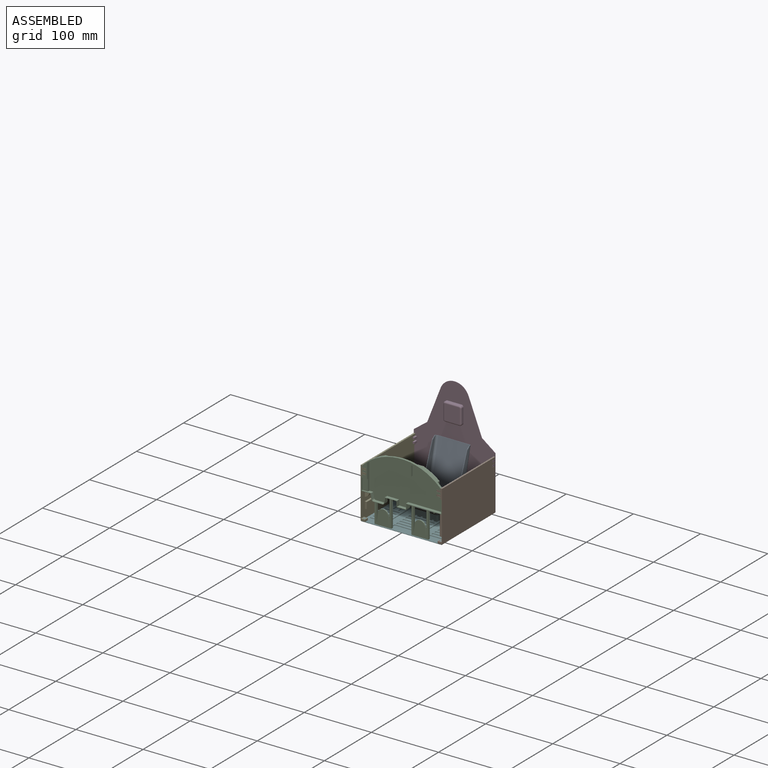
[diagram: assembled view]
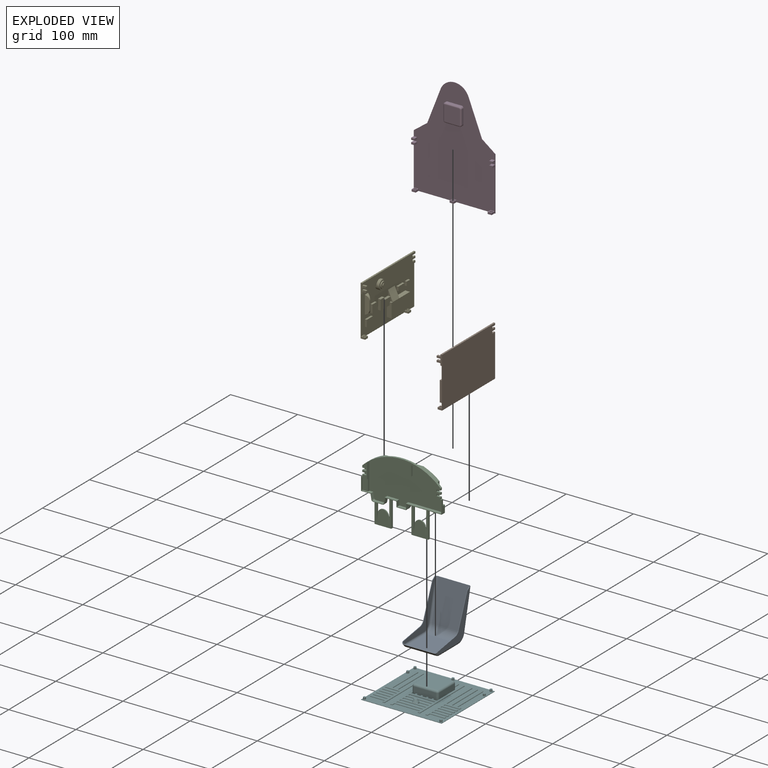
[diagram: exploded view]
GUIDED TOUR — MATED ASSEMBLY (Onshape document f643e75d56a3ad6be1e354ca, AutoMate assembly f643e75d56a3ad6be1e354ca_9b9a3edb59c0431f079ebedc_5ecf5f569c2795ce828b274c_default)

This assembly has 6 components, labeled P0..P5 below (a component is one placed occurrence of a part; the same part can appear more than once), held together by 5 mates. A mate is a constraint between two components; its type names the relative motion it leaves free:
  FASTENED — locks the two components together rigidly (no relative motion).
Axis/direction vectors are unit vectors and 'through' points are millimeter coordinates, both in the assembly's world frame.

MATES
  1. FASTENED "緊固 3": P1 <-> P5, direction (0.000, 0.000, 1.000) through (57.13, 58.55, -73.95) mm
  2. FASTENED "緊固 2": P4 <-> P5, direction (0.000, 0.000, 1.000) through (-56.87, 58.55, -73.95) mm
  3. FASTENED "緊固 5": P2 <-> P1, direction (1.000, 0.000, 0.000) through (58.33, -36.45, -9.35) mm
  4. FASTENED "緊固 1": P5 <-> P3, direction (0.000, 0.000, 1.000) through (-56.47, 73.55, -73.95) mm
  5. FASTENED "緊固 4": P0 <-> P5, direction (0.000, 0.000, -1.000) through (0.13, 48.55, -63.95) mm

ASSEMBLY ORDER
  1. P2 — the base component [order verified]
  2. P0 [order verified]
  3. P1 [order verified]
  4. P4 [order verified]
  5. P5 [order verified]
  6. P3 [order verified]
Order-tag legend:
  [order verified] — this step's position reverses a verified removal order: the component was checked to insert without passing through the ones already placed.

Of the 6 components, 4 carry the full construction recipe — the FeatureScript program that regenerates the part's solid from scratch; the rest are supplied as boundary geometry only.
Each toured component is shown spotlighted twice — in the assembled view, then in the exploded view, where a leader line traces a displaced component back to its assembled socket (saturated green if recipe-attached, orange if geometry-only; every other component desaturated gray) — followed by its recipe or geometry summary and the mates that hold it.
NOTE — document 2 of 2 of this assembly tour. The two overview renders and the header above are repeated from document 1; the component sections below continue where the previous document stopped.
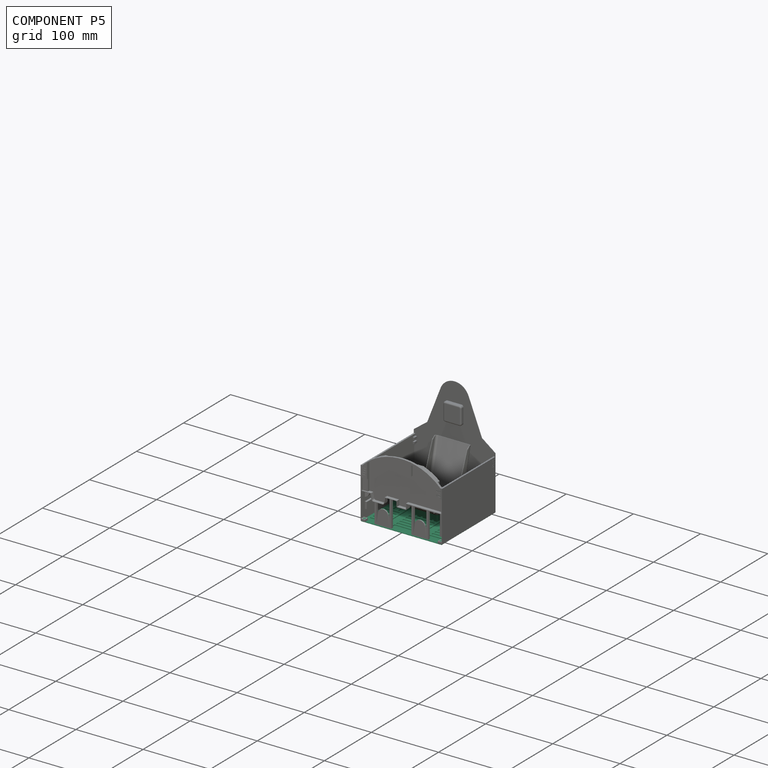
[diagram: component P5 — assembled]
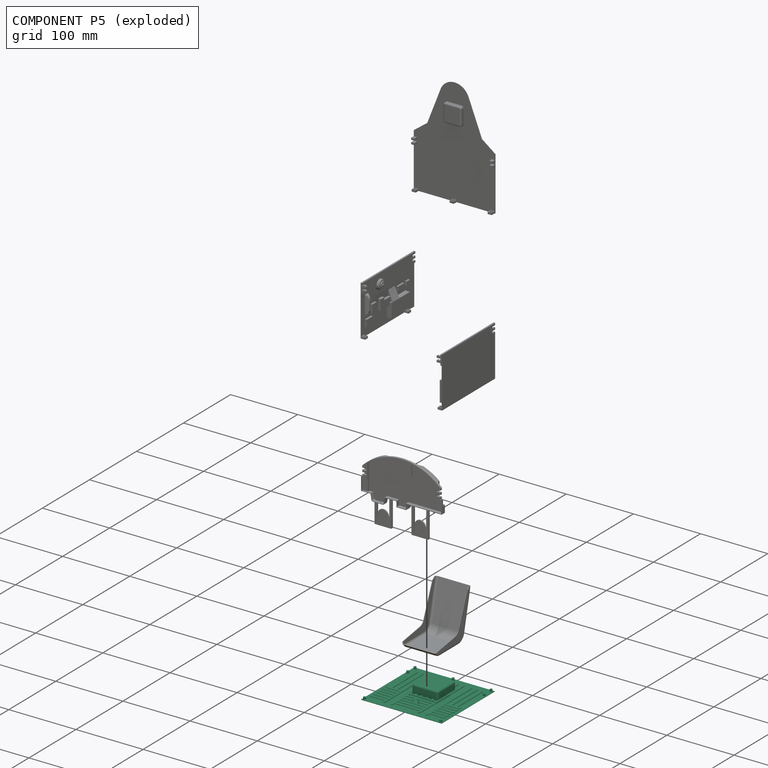
[diagram: component P5 — exploded]
COMPONENT P5 — recipe-attached (CADFS 00360889, mesh-verified: the recipe's output STEP matches this component's geometry to below the mesh-comparison resolution (tessellation chordal tolerance ~0.248 mm)).
Held by: FASTENED mate "緊固 3" to P1; FASTENED mate "緊固 2" to P4; FASTENED mate "緊固 1" to P3; FASTENED mate "緊固 4" to P0.
Construction recipe (FeatureScript — the CAD program that rebuilds this solid; sketch coordinates are in the units given by the * unit suffixes, e.g. mm):

FeatureScript 1511;
import(path : "onshape/std/geometry.fs", version : "1511.0");
import(path : "onshape/std/common.fs", version : "1511.0");
const mm = millimeter;
const VERTEX = EntityType.VERTEX;
const EDGE = EntityType.EDGE;
const FACE = EntityType.FACE;
const BODY = EntityType.BODY;
function v(x, y){return vector(x, y);}
function OD(order){return orderDisambiguation(order);}
function OSD(set){return originalSetDisambiguation(set);}
function TD(topology){return topologyDisambiguation(topology);}
function TDD(query){return trueDependencyDisambiguation(query);}
function sQuery(a, b, c) {return sketchEntityQuery(a, b, c);}

annotation { "Feature Type Name" : "Feature", "Feature Type Description" : "" }
export const myFeature = defineFeature(function(context is Context, id is Id, definition is map)
    precondition{}
    {
        {
            var Q0;
            Q0=qCreatedBy(makeId("Top.planeOp"),FACE);
            var sketch = newSketch(context, id + "F0", { "sketchPlane" : qUnion([Q0])});
            skLineSegment(sketch, "E0.bottom", {"start": v(-60, 0) * mm, "end": v(60, 0) * mm});
            skLineSegment(sketch, "E0.top", {"start": v(-60, -113) * mm, "end": v(60, -113) * mm});
            skLineSegment(sketch, "E0.left", {"start": v(-60, 0) * mm, "end": v(-60, -113) * mm});
            skLineSegment(sketch, "E0.right", {"start": v(60, 0) * mm, "end": v(60, -113) * mm});
            skPoint(sketch, "E1", {"position": v(0, 0) * mm});
            skSolve(sketch);
        }
        {
            var Q0;
            Q0 = qSketchRegion(id + "F0", true);
            extrude(context, id + "F1", {"entities" : qUnion([Q0]), "depth" : 0.6 * mm});
        }
        {
            var Q0;
            Q0=qCreatedBy(makeId("Front.planeOp"),FACE);
            cPlane(context, id + "F2", {"entities" : qUnion([Q0]), "cplaneType" : CPlaneType.OFFSET, "offset" : 10 * mm, "width" : 150 * mm, "height" : 150 * mm});
        }
        {
            var Q0;
            {var subQ37=sQuery(id+"F0.wireOp",EDGE,"E0.bottom");var subQ42=sQuery(id+"F0.wireOp",EDGE,"E0.right");var subQ43=sQuery(id+"F0.wireOp",EDGE,"E0.top");var subQ45=sQuery(id+"F0.wireOp",EDGE,"E0.left");Q0=makeQuery(id+"F12.boolean.opBoolean","SPLIT",FACE,{"disambiguationData":[TD([makeQuery(id+"F1.opExtrude","SWEPT_FACE",FACE,{"disambiguationData":[OSD([subQ37])]})])],"derivedFrom":makeQuery(id+"F1.opExtrude","CAP_FACE",FACE,{"disambiguationData":[OSD([subQ37,subQ43,subQ45,subQ42])],"isStart":false})});}
            var sketch = newSketch(context, id + "F3", { "sketchPlane" : qUnion([Q0])});
            skLineSegment(sketch, "E2.bottom", {"start": v(-19.5, -25) * mm, "end": v(19.5, -25) * mm});
            skLineSegment(sketch, "E2.top", {"start": v(-19.5, -63) * mm, "end": v(19.5, -63) * mm});
            skLineSegment(sketch, "E2.left", {"start": v(-19.5, -25) * mm, "end": v(-19.5, -63) * mm});
            skLineSegment(sketch, "E2.right", {"start": v(19.5, -25) * mm, "end": v(19.5, -63) * mm});
            skSolve(sketch);
        }
        {
            var Q0;
            Q0=qCreatedBy(id+"F2.planeOp",FACE);
            var sketch = newSketch(context, id + "F4", { "sketchPlane" : qUnion([Q0])});
            skLineSegment(sketch, "E3.bottom", {"start": v(50, 0.6) * mm, "end": v(46.8, 0.6) * mm});
            skLineSegment(sketch, "E3.top", {"start": v(50, 2) * mm, "end": v(46.8, 2) * mm});
            skLineSegment(sketch, "E3.left", {"start": v(50, 0.6) * mm, "end": v(50, 2) * mm});
            skLineSegment(sketch, "E3.right", {"start": v(46.8, 0.6) * mm, "end": v(46.8, 2) * mm});
            skLineSegment(sketch, "E4.bottom", {"start": v(41.8, 2) * mm, "end": v(38.6, 2) * mm});
            skLineSegment(sketch, "E4.top", {"start": v(41.8, 0.6) * mm, "end": v(38.6, 0.6) * mm});
            skLineSegment(sketch, "E4.left", {"start": v(41.8, 2) * mm, "end": v(41.8, 0.6) * mm});
            skLineSegment(sketch, "E4.right", {"start": v(38.6, 2) * mm, "end": v(38.6, 0.6) * mm});
            skLineSegment(sketch, "E5.bottom", {"start": v(33.6, 2) * mm, "end": v(30.4, 2) * mm});
            skLineSegment(sketch, "E5.top", {"start": v(33.6, 0.6) * mm, "end": v(30.4, 0.6) * mm});
            skLineSegment(sketch, "E5.left", {"start": v(33.6, 2) * mm, "end": v(33.6, 0.6) * mm});
            skLineSegment(sketch, "E5.right", {"start": v(30.4, 2) * mm, "end": v(30.4, 0.6) * mm});
            skLineSegment(sketch, "E6.bottom", {"start": v(-46.8, 2) * mm, "end": v(-50, 2) * mm});
            skLineSegment(sketch, "E6.top", {"start": v(-46.8, 0.6) * mm, "end": v(-50, 0.6) * mm});
            skLineSegment(sketch, "E6.left", {"start": v(-46.8, 2) * mm, "end": v(-46.8, 0.6) * mm});
            skLineSegment(sketch, "E6.right", {"start": v(-50, 2) * mm, "end": v(-50, 0.6) * mm});
            skLineSegment(sketch, "E7.bottom", {"start": v(-38.6, 2) * mm, "end": v(-41.8, 2) * mm});
            skLineSegment(sketch, "E7.top", {"start": v(-38.6, 0.6) * mm, "end": v(-41.8, 0.6) * mm});
            skLineSegment(sketch, "E7.left", {"start": v(-38.6, 2) * mm, "end": v(-38.6, 0.6) * mm});
            skLineSegment(sketch, "E7.right", {"start": v(-41.8, 2) * mm, "end": v(-41.8, 0.6) * mm});
            skLineSegment(sketch, "E8.bottom", {"start": v(-30.4, 2) * mm, "end": v(-33.6, 2) * mm});
            skLineSegment(sketch, "E8.top", {"start": v(-30.4, 0.6) * mm, "end": v(-33.6, 0.6) * mm});
            skLineSegment(sketch, "E8.left", {"start": v(-30.4, 2) * mm, "end": v(-30.4, 0.6) * mm});
            skLineSegment(sketch, "E8.right", {"start": v(-33.6, 2) * mm, "end": v(-33.6, 0.6) * mm});
            skLineSegment(sketch, "E9.bottom", {"start": v(-2.5, 2) * mm, "end": v(-5.7, 2) * mm});
            skLineSegment(sketch, "E9.top", {"start": v(-2.5, 0.6) * mm, "end": v(-5.7, 0.6) * mm});
            skLineSegment(sketch, "E9.left", {"start": v(-2.5, 2) * mm, "end": v(-2.5, 0.6) * mm});
            skLineSegment(sketch, "E9.right", {"start": v(-5.7, 2) * mm, "end": v(-5.7, 0.6) * mm});
            skLineSegment(sketch, "E10.bottom", {"start": v(-10.7, 2) * mm, "end": v(-13.9, 2) * mm});
            skLineSegment(sketch, "E10.top", {"start": v(-10.7, 0.6) * mm, "end": v(-13.9, 0.6) * mm});
            skLineSegment(sketch, "E10.left", {"start": v(-10.7, 2) * mm, "end": v(-10.7, 0.6) * mm});
            skLineSegment(sketch, "E10.right", {"start": v(-13.9, 2) * mm, "end": v(-13.9, 0.6) * mm});
            skLineSegment(sketch, "E11.bottom", {"start": v(-18.9, 2) * mm, "end": v(-22.1, 2) * mm});
            skLineSegment(sketch, "E11.top", {"start": v(-18.9, 0.6) * mm, "end": v(-22.1, 0.6) * mm});
            skLineSegment(sketch, "E11.left", {"start": v(-18.9, 2) * mm, "end": v(-18.9, 0.6) * mm});
            skLineSegment(sketch, "E11.right", {"start": v(-22.1, 2) * mm, "end": v(-22.1, 0.6) * mm});
            skLineSegment(sketch, "E12.bottom", {"start": v(5.7, 2) * mm, "end": v(2.5, 2) * mm});
            skLineSegment(sketch, "E12.top", {"start": v(5.7, 0.6) * mm, "end": v(2.5, 0.6) * mm});
            skLineSegment(sketch, "E12.left", {"start": v(5.7, 2) * mm, "end": v(5.7, 0.6) * mm});
            skLineSegment(sketch, "E12.right", {"start": v(2.5, 2) * mm, "end": v(2.5, 0.6) * mm});
            skLineSegment(sketch, "E13.bottom", {"start": v(13.9, 2) * mm, "end": v(10.7, 2) * mm});
            skLineSegment(sketch, "E13.top", {"start": v(13.9, 0.6) * mm, "end": v(10.7, 0.6) * mm});
            skLineSegment(sketch, "E13.left", {"start": v(13.9, 2) * mm, "end": v(13.9, 0.6) * mm});
            skLineSegment(sketch, "E13.right", {"start": v(10.7, 2) * mm, "end": v(10.7, 0.6) * mm});
            skLineSegment(sketch, "E14.bottom", {"start": v(22.1, 2) * mm, "end": v(18.9, 2) * mm});
            skLineSegment(sketch, "E14.top", {"start": v(22.1, 0.6) * mm, "end": v(18.9, 0.6) * mm});
            skLineSegment(sketch, "E14.left", {"start": v(22.1, 2) * mm, "end": v(22.1, 0.6) * mm});
            skLineSegment(sketch, "E14.right", {"start": v(18.9, 2) * mm, "end": v(18.9, 0.6) * mm});
            skSolve(sketch);
        }
        {
            var Q0;
            Q0 = qSketchRegion(id + "F4", true);
            extrude(context, id + "F5", {"entities" : qUnion([Q0]), "operationType" : NewBodyOperationType.ADD, "depth" : 55 * mm});
        }
        {
            var Q0;
            Q0=makeQuery(id+"F5.opExtrude","CAP_FACE",FACE,{"disambiguationData":[OSD([sQuery(id+"F4.wireOp",EDGE,"E8.bottom"),sQuery(id+"F4.wireOp",EDGE,"E8.top"),sQuery(id+"F4.wireOp",EDGE,"E8.left"),sQuery(id+"F4.wireOp",EDGE,"E8.right")])],"isStart":true});
            var Q1;
            Q1=makeQuery(id+"F5.opExtrude","CAP_FACE",FACE,{"disambiguationData":[OSD([sQuery(id+"F4.wireOp",EDGE,"E11.bottom"),sQuery(id+"F4.wireOp",EDGE,"E11.top"),sQuery(id+"F4.wireOp",EDGE,"E11.left"),sQuery(id+"F4.wireOp",EDGE,"E11.right")])],"isStart":true});
            var Q2;
            Q2=makeQuery(id+"F5.opExtrude","CAP_FACE",FACE,{"disambiguationData":[OSD([sQuery(id+"F4.wireOp",EDGE,"E14.bottom"),sQuery(id+"F4.wireOp",EDGE,"E14.top"),sQuery(id+"F4.wireOp",EDGE,"E14.left"),sQuery(id+"F4.wireOp",EDGE,"E14.right")])],"isStart":true});
            var Q3;
            Q3=makeQuery(id+"F5.opExtrude","CAP_FACE",FACE,{"disambiguationData":[OSD([sQuery(id+"F4.wireOp",EDGE,"E5.bottom"),sQuery(id+"F4.wireOp",EDGE,"E5.top"),sQuery(id+"F4.wireOp",EDGE,"E5.left"),sQuery(id+"F4.wireOp",EDGE,"E5.right")])],"isStart":true});
            extrude(context, id + "F6", {"entities" : qUnion([Q0, Q1, Q2, Q3]), "operationType" : NewBodyOperationType.ADD, "oppositeDirection" : true, "depth" : 95 * mm});
        }
        {
            var Q0;
            {var subQ0=sQuery(id+"F4.wireOp",EDGE,"E8.right");Q0=makeQuery(id+"F6.boolean.opBoolean","MERGE",FACE,{"derivedFrom":[makeQuery(id+"F5.opExtrude","SWEPT_FACE",FACE,{"disambiguationData":[OSD([subQ0])]}),makeQuery(id+"F6.opExtrude","SWEPT_FACE",FACE,{"disambiguationData":[OSD([subQ0])]})]});}
            var sketch = newSketch(context, id + "F7", { "sketchPlane" : qUnion([Q0])});
            skLineSegment(sketch, "E15.bottom", {"start": v(65, 2) * mm, "end": v(68.2, 2) * mm});
            skLineSegment(sketch, "E15.top", {"start": v(65, 0.6) * mm, "end": v(68.2, 0.6) * mm});
            skLineSegment(sketch, "E15.left", {"start": v(65, 2) * mm, "end": v(65, 0.6) * mm});
            skLineSegment(sketch, "E15.right", {"start": v(68.2, 2) * mm, "end": v(68.2, 0.6) * mm});
            skLineSegment(sketch, "E16.bottom", {"start": v(71.4, 2) * mm, "end": v(74.6, 2) * mm});
            skLineSegment(sketch, "E16.top", {"start": v(71.4, 0.6) * mm, "end": v(74.6, 0.6) * mm});
            skLineSegment(sketch, "E16.left", {"start": v(71.4, 2) * mm, "end": v(71.4, 0.6) * mm});
            skLineSegment(sketch, "E16.right", {"start": v(74.6, 2) * mm, "end": v(74.6, 0.6) * mm});
            skLineSegment(sketch, "E17.bottom", {"start": v(77.8, 2) * mm, "end": v(81, 2) * mm});
            skLineSegment(sketch, "E17.top", {"start": v(77.8, 0.6) * mm, "end": v(81, 0.6) * mm});
            skLineSegment(sketch, "E17.left", {"start": v(77.8, 2) * mm, "end": v(77.8, 0.6) * mm});
            skLineSegment(sketch, "E17.right", {"start": v(81, 2) * mm, "end": v(81, 0.6) * mm});
            skLineSegment(sketch, "E18.bottom", {"start": v(84.2, 2) * mm, "end": v(87.4, 2) * mm});
            skLineSegment(sketch, "E18.top", {"start": v(84.2, 0.6) * mm, "end": v(87.4, 0.6) * mm});
            skLineSegment(sketch, "E18.left", {"start": v(84.2, 2) * mm, "end": v(84.2, 0.6) * mm});
            skLineSegment(sketch, "E18.right", {"start": v(87.4, 2) * mm, "end": v(87.4, 0.6) * mm});
            skLineSegment(sketch, "E19.bottom", {"start": v(90.6, 2) * mm, "end": v(93.8, 2) * mm});
            skLineSegment(sketch, "E19.top", {"start": v(90.6, 0.6) * mm, "end": v(93.8, 0.6) * mm});
            skLineSegment(sketch, "E19.left", {"start": v(90.6, 2) * mm, "end": v(90.6, 0.6) * mm});
            skLineSegment(sketch, "E19.right", {"start": v(93.8, 2) * mm, "end": v(93.8, 0.6) * mm});
            skLineSegment(sketch, "E20.bottom", {"start": v(97, 2) * mm, "end": v(100.2, 2) * mm});
            skLineSegment(sketch, "E20.top", {"start": v(97, 0.6) * mm, "end": v(100.2, 0.6) * mm});
            skLineSegment(sketch, "E20.left", {"start": v(97, 2) * mm, "end": v(97, 0.6) * mm});
            skLineSegment(sketch, "E20.right", {"start": v(100.2, 2) * mm, "end": v(100.2, 0.6) * mm});
            skSolve(sketch);
        }
        {
            var Q0;
            Q0 = qSketchRegion(id + "F7", true);
            extrude(context, id + "F8", {"entities" : qUnion([Q0]), "operationType" : NewBodyOperationType.ADD, "depth" : 22 * mm});
        }
        {
            var Q0;
            {var subQ0=sQuery(id+"F4.wireOp",EDGE,"E5.left");Q0=makeQuery(id+"F6.boolean.opBoolean","MERGE",FACE,{"derivedFrom":[makeQuery(id+"F5.opExtrude","SWEPT_FACE",FACE,{"disambiguationData":[OSD([subQ0])]}),makeQuery(id+"F6.opExtrude","SWEPT_FACE",FACE,{"disambiguationData":[OSD([subQ0])]})]});}
            var sketch = newSketch(context, id + "F9", { "sketchPlane" : qUnion([Q0])});
            skLineSegment(sketch, "E21.bottom", {"start": v(-65, 0.6) * mm, "end": v(-68.2, 0.6) * mm});
            skLineSegment(sketch, "E21.top", {"start": v(-65, 2) * mm, "end": v(-68.2, 2) * mm});
            skLineSegment(sketch, "E21.left", {"start": v(-65, 0.6) * mm, "end": v(-65, 2) * mm});
            skLineSegment(sketch, "E21.right", {"start": v(-68.2, 0.6) * mm, "end": v(-68.2, 2) * mm});
            skLineSegment(sketch, "E22.bottom", {"start": v(-71.4, 0.6) * mm, "end": v(-74.6, 0.6) * mm});
            skLineSegment(sketch, "E22.top", {"start": v(-71.4, 2) * mm, "end": v(-74.6, 2) * mm});
            skLineSegment(sketch, "E22.left", {"start": v(-71.4, 0.6) * mm, "end": v(-71.4, 2) * mm});
            skLineSegment(sketch, "E22.right", {"start": v(-74.6, 0.6) * mm, "end": v(-74.6, 2) * mm});
            skLineSegment(sketch, "E23.bottom", {"start": v(-77.8, 0.6) * mm, "end": v(-81, 0.6) * mm});
            skLineSegment(sketch, "E23.top", {"start": v(-77.8, 2) * mm, "end": v(-81, 2) * mm});
            skLineSegment(sketch, "E23.left", {"start": v(-77.8, 0.6) * mm, "end": v(-77.8, 2) * mm});
            skLineSegment(sketch, "E23.right", {"start": v(-81, 0.6) * mm, "end": v(-81, 2) * mm});
            skLineSegment(sketch, "E24.bottom", {"start": v(-84.2, 0.6) * mm, "end": v(-87.4, 0.6) * mm});
            skLineSegment(sketch, "E24.top", {"start": v(-84.2, 2) * mm, "end": v(-87.4, 2) * mm});
            skLineSegment(sketch, "E24.left", {"start": v(-84.2, 0.6) * mm, "end": v(-84.2, 2) * mm});
            skLineSegment(sketch, "E24.right", {"start": v(-87.4, 0.6) * mm, "end": v(-87.4, 2) * mm});
            skLineSegment(sketch, "E25.bottom", {"start": v(-90.6, 0.6) * mm, "end": v(-93.8, 0.6) * mm});
            skLineSegment(sketch, "E25.top", {"start": v(-90.6, 2) * mm, "end": v(-93.8, 2) * mm});
            skLineSegment(sketch, "E25.left", {"start": v(-90.6, 0.6) * mm, "end": v(-90.6, 2) * mm});
            skLineSegment(sketch, "E25.right", {"start": v(-93.8, 0.6) * mm, "end": v(-93.8, 2) * mm});
            skLineSegment(sketch, "E26.bottom", {"start": v(-97, 0.6) * mm, "end": v(-100.2, 0.6) * mm});
            skLineSegment(sketch, "E26.top", {"start": v(-97, 2) * mm, "end": v(-100.2, 2) * mm});
            skLineSegment(sketch, "E26.left", {"start": v(-97, 0.6) * mm, "end": v(-97, 2) * mm});
            skLineSegment(sketch, "E26.right", {"start": v(-100.2, 0.6) * mm, "end": v(-100.2, 2) * mm});
            skSolve(sketch);
        }
        {
            var Q0;
            Q0 = qSketchRegion(id + "F9", true);
            extrude(context, id + "F10", {"entities" : qUnion([Q0]), "operationType" : NewBodyOperationType.ADD, "depth" : 22 * mm});
        }
        {
            var Q0;
            {var subQ0=sQuery(id+"F4.wireOp",EDGE,"E11.left");Q0=makeQuery(id+"F6.boolean.opBoolean","MERGE",FACE,{"derivedFrom":[makeQuery(id+"F5.opExtrude","SWEPT_FACE",FACE,{"disambiguationData":[OSD([subQ0])]}),makeQuery(id+"F6.opExtrude","SWEPT_FACE",FACE,{"disambiguationData":[OSD([subQ0])]})]});}
            var sketch = newSketch(context, id + "F11", { "sketchPlane" : qUnion([Q0])});
            skLineSegment(sketch, "E27.bottom", {"start": v(-68.2, 2) * mm, "end": v(-65, 2) * mm});
            skLineSegment(sketch, "E27.top", {"start": v(-68.2, 0.6) * mm, "end": v(-65, 0.6) * mm});
            skLineSegment(sketch, "E27.left", {"start": v(-68.2, 2) * mm, "end": v(-68.2, 0.6) * mm});
            skLineSegment(sketch, "E27.right", {"start": v(-65, 2) * mm, "end": v(-65, 0.6) * mm});
            skLineSegment(sketch, "E28.bottom", {"start": v(-74.6, 2) * mm, "end": v(-71.4, 2) * mm});
            skLineSegment(sketch, "E28.top", {"start": v(-74.6, 0.6) * mm, "end": v(-71.4, 0.6) * mm});
            skLineSegment(sketch, "E28.left", {"start": v(-74.6, 2) * mm, "end": v(-74.6, 0.6) * mm});
            skLineSegment(sketch, "E28.right", {"start": v(-71.4, 2) * mm, "end": v(-71.4, 0.6) * mm});
            skLineSegment(sketch, "E29.bottom", {"start": v(-81, 2) * mm, "end": v(-77.8, 2) * mm});
            skLineSegment(sketch, "E29.top", {"start": v(-81, 0.6) * mm, "end": v(-77.8, 0.6) * mm});
            skLineSegment(sketch, "E29.left", {"start": v(-81, 2) * mm, "end": v(-81, 0.6) * mm});
            skLineSegment(sketch, "E29.right", {"start": v(-77.8, 2) * mm, "end": v(-77.8, 0.6) * mm});
            skLineSegment(sketch, "E30.bottom", {"start": v(-87.4, 2) * mm, "end": v(-84.2, 2) * mm});
            skLineSegment(sketch, "E30.top", {"start": v(-87.4, 0.6) * mm, "end": v(-84.2, 0.6) * mm});
            skLineSegment(sketch, "E30.left", {"start": v(-87.4, 2) * mm, "end": v(-87.4, 0.6) * mm});
            skLineSegment(sketch, "E30.right", {"start": v(-84.2, 2) * mm, "end": v(-84.2, 0.6) * mm});
            skLineSegment(sketch, "E31.bottom", {"start": v(-93.8, 2) * mm, "end": v(-90.6, 2) * mm});
            skLineSegment(sketch, "E31.top", {"start": v(-93.8, 0.6) * mm, "end": v(-90.6, 0.6) * mm});
            skLineSegment(sketch, "E31.left", {"start": v(-93.8, 2) * mm, "end": v(-93.8, 0.6) * mm});
            skLineSegment(sketch, "E31.right", {"start": v(-90.6, 2) * mm, "end": v(-90.6, 0.6) * mm});
            skLineSegment(sketch, "E32.bottom", {"start": v(-100.2, 2) * mm, "end": v(-97, 2) * mm});
            skLineSegment(sketch, "E32.top", {"start": v(-100.2, 0.6) * mm, "end": v(-97, 0.6) * mm});
            skLineSegment(sketch, "E32.left", {"start": v(-100.2, 2) * mm, "end": v(-100.2, 0.6) * mm});
            skLineSegment(sketch, "E32.right", {"start": v(-97, 2) * mm, "end": v(-97, 0.6) * mm});
            skSolve(sketch);
        }
        {
            var Q0;
            Q0 = qSketchRegion(id + "F11", true);
            extrude(context, id + "F12", {"entities" : qUnion([Q0]), "operationType" : NewBodyOperationType.ADD, "depth" : 38 * mm});
        }
        {
            var Q0;
            {var subQ0=sQuery(id+"F4.wireOp",EDGE,"E5.bottom");Q0=makeQuery(id+"F10.boolean.opBoolean","MERGE",FACE,{"derivedFrom":[makeQuery(id+"F5.opExtrude","SWEPT_FACE",FACE,{"disambiguationData":[OSD([sQuery(id+"F4.wireOp",EDGE,"E3.top")])]}),makeQuery(id+"F5.opExtrude","SWEPT_FACE",FACE,{"disambiguationData":[OSD([sQuery(id+"F4.wireOp",EDGE,"E4.bottom")])]}),makeQuery(id+"F6.boolean.opBoolean","MERGE",FACE,{"derivedFrom":[makeQuery(id+"F5.opExtrude","SWEPT_FACE",FACE,{"disambiguationData":[OSD([subQ0])]}),makeQuery(id+"F6.opExtrude","SWEPT_FACE",FACE,{"disambiguationData":[OSD([subQ0])]})]}),makeQuery(id+"F10.opExtrude","SWEPT_FACE",FACE,{"disambiguationData":[OSD([sQuery(id+"F9.wireOp",EDGE,"E21.top")])]}),makeQuery(id+"F10.opExtrude","SWEPT_FACE",FACE,{"disambiguationData":[OSD([sQuery(id+"F9.wireOp",EDGE,"E22.top")])]}),makeQuery(id+"F10.opExtrude","SWEPT_FACE",FACE,{"disambiguationData":[OSD([sQuery(id+"F9.wireOp",EDGE,"E23.top")])]}),makeQuery(id+"F10.opExtrude","SWEPT_FACE",FACE,{"disambiguationData":[OSD([sQuery(id+"F9.wireOp",EDGE,"E24.top")])]}),makeQuery(id+"F10.opExtrude","SWEPT_FACE",FACE,{"disambiguationData":[OSD([sQuery(id+"F9.wireOp",EDGE,"E25.top")])]}),makeQuery(id+"F10.opExtrude","SWEPT_FACE",FACE,{"disambiguationData":[OSD([sQuery(id+"F9.wireOp",EDGE,"E26.top")])]})]});}
            var Q1;
            {var subQ0=sQuery(id+"F4.wireOp",EDGE,"E8.bottom");Q1=makeQuery(id+"F8.boolean.opBoolean","MERGE",FACE,{"derivedFrom":[makeQuery(id+"F5.opExtrude","SWEPT_FACE",FACE,{"disambiguationData":[OSD([sQuery(id+"F4.wireOp",EDGE,"E6.bottom")])]}),makeQuery(id+"F5.opExtrude","SWEPT_FACE",FACE,{"disambiguationData":[OSD([sQuery(id+"F4.wireOp",EDGE,"E7.bottom")])]}),makeQuery(id+"F6.boolean.opBoolean","MERGE",FACE,{"derivedFrom":[makeQuery(id+"F5.opExtrude","SWEPT_FACE",FACE,{"disambiguationData":[OSD([subQ0])]}),makeQuery(id+"F6.opExtrude","SWEPT_FACE",FACE,{"disambiguationData":[OSD([subQ0])]})]}),makeQuery(id+"F8.opExtrude","SWEPT_FACE",FACE,{"disambiguationData":[OSD([sQuery(id+"F7.wireOp",EDGE,"E15.bottom")])]}),makeQuery(id+"F8.opExtrude","SWEPT_FACE",FACE,{"disambiguationData":[OSD([sQuery(id+"F7.wireOp",EDGE,"E16.bottom")])]}),makeQuery(id+"F8.opExtrude","SWEPT_FACE",FACE,{"disambiguationData":[OSD([sQuery(id+"F7.wireOp",EDGE,"E17.bottom")])]}),makeQuery(id+"F8.opExtrude","SWEPT_FACE",FACE,{"disambiguationData":[OSD([sQuery(id+"F7.wireOp",EDGE,"E18.bottom")])]}),makeQuery(id+"F8.opExtrude","SWEPT_FACE",FACE,{"disambiguationData":[OSD([sQuery(id+"F7.wireOp",EDGE,"E19.bottom")])]}),makeQuery(id+"F8.opExtrude","SWEPT_FACE",FACE,{"disambiguationData":[OSD([sQuery(id+"F7.wireOp",EDGE,"E20.bottom")])]})]});}
            fillet(context, id + "F13", {"entities" : qUnion([Q0, Q1]), "radius" : 1 * mm, "tangentPropagation" : true, "allowEdgeOverflow" : false});
        }
        {
            var Q0;
            {var subQ11=sQuery(id+"F4.wireOp",EDGE,"E14.bottom");var subQ12=sQuery(id+"F4.wireOp",EDGE,"E11.left");var subQ15=sQuery(id+"F4.wireOp",EDGE,"E11.bottom");Q0=makeQuery(id+"Fkwt5QVxKcjviMI_1.boolean.opBoolean","SPLIT",FACE,{"disambiguationData":[TD([makeQuery(id+"F5.opExtrude","SWEPT_FACE",FACE,{"disambiguationData":[OSD([subQ12])]})])],"derivedFrom":makeQuery(id+"F12.boolean.opBoolean","MERGE",FACE,{"derivedFrom":[makeQuery(id+"F5.opExtrude","SWEPT_FACE",FACE,{"disambiguationData":[OSD([sQuery(id+"F4.wireOp",EDGE,"E9.bottom")])]}),makeQuery(id+"F5.opExtrude","SWEPT_FACE",FACE,{"disambiguationData":[OSD([sQuery(id+"F4.wireOp",EDGE,"E10.bottom")])]}),makeQuery(id+"F5.opExtrude","SWEPT_FACE",FACE,{"disambiguationData":[OSD([sQuery(id+"F4.wireOp",EDGE,"E12.bottom")])]}),makeQuery(id+"F5.opExtrude","SWEPT_FACE",FACE,{"disambiguationData":[OSD([sQuery(id+"F4.wireOp",EDGE,"E13.bottom")])]}),makeQuery(id+"F6.boolean.opBoolean","MERGE",FACE,{"derivedFrom":[makeQuery(id+"F5.opExtrude","SWEPT_FACE",FACE,{"disambiguationData":[OSD([subQ15])]}),makeQuery(id+"F6.opExtrude","SWEPT_FACE",FACE,{"disambiguationData":[OSD([subQ15])]})]}),makeQuery(id+"F6.boolean.opBoolean","MERGE",FACE,{"derivedFrom":[makeQuery(id+"F5.opExtrude","SWEPT_FACE",FACE,{"disambiguationData":[OSD([subQ11])]}),makeQuery(id+"F6.opExtrude","SWEPT_FACE",FACE,{"disambiguationData":[OSD([subQ11])]})]}),makeQuery(id+"F12.opExtrude","SWEPT_FACE",FACE,{"disambiguationData":[OSD([sQuery(id+"F11.wireOp",EDGE,"E27.bottom")])]}),makeQuery(id+"F12.opExtrude","SWEPT_FACE",FACE,{"disambiguationData":[OSD([sQuery(id+"F11.wireOp",EDGE,"E28.bottom")])]}),makeQuery(id+"F12.opExtrude","SWEPT_FACE",FACE,{"disambiguationData":[OSD([sQuery(id+"F11.wireOp",EDGE,"E29.bottom")])]}),makeQuery(id+"F12.opExtrude","SWEPT_FACE",FACE,{"disambiguationData":[OSD([sQuery(id+"F11.wireOp",EDGE,"E30.bottom")])]}),makeQuery(id+"F12.opExtrude","SWEPT_FACE",FACE,{"disambiguationData":[OSD([sQuery(id+"F11.wireOp",EDGE,"E31.bottom")])]}),makeQuery(id+"F12.opExtrude","SWEPT_FACE",FACE,{"disambiguationData":[OSD([sQuery(id+"F11.wireOp",EDGE,"E32.bottom")])]})]})});}
            var Q1;
            {var subQ0=sQuery(id+"F4.wireOp",EDGE,"E10.right");var subQ1=sQuery(id+"F4.wireOp",EDGE,"E10.left");var subQ2=sQuery(id+"F4.wireOp",EDGE,"E10.bottom");var subQ3=sQuery(id+"F4.wireOp",EDGE,"E14.bottom");var subQ4=sQuery(id+"F4.wireOp",EDGE,"E11.bottom");Q1=makeQuery(id+"Fkwt5QVxKcjviMI_1.boolean.opBoolean","SPLIT",FACE,{"disambiguationData":[TD([makeQuery(id+"F5.opExtrude","CAP_FACE",FACE,{"disambiguationData":[OSD([subQ2,sQuery(id+"F4.wireOp",EDGE,"E10.top"),subQ1,subQ0])],"isStart":true})])],"derivedFrom":makeQuery(id+"F12.boolean.opBoolean","MERGE",FACE,{"derivedFrom":[makeQuery(id+"F5.opExtrude","SWEPT_FACE",FACE,{"disambiguationData":[OSD([sQuery(id+"F4.wireOp",EDGE,"E9.bottom")])]}),makeQuery(id+"F5.opExtrude","SWEPT_FACE",FACE,{"disambiguationData":[OSD([subQ2])]}),makeQuery(id+"F5.opExtrude","SWEPT_FACE",FACE,{"disambiguationData":[OSD([sQuery(id+"F4.wireOp",EDGE,"E12.bottom")])]}),makeQuery(id+"F5.opExtrude","SWEPT_FACE",FACE,{"disambiguationData":[OSD([sQuery(id+"F4.wireOp",EDGE,"E13.bottom")])]}),makeQuery(id+"F6.boolean.opBoolean","MERGE",FACE,{"derivedFrom":[makeQuery(id+"F5.opExtrude","SWEPT_FACE",FACE,{"disambiguationData":[OSD([subQ4])]}),makeQuery(id+"F6.opExtrude","SWEPT_FACE",FACE,{"disambiguationData":[OSD([subQ4])]})]}),makeQuery(id+"F6.boolean.opBoolean","MERGE",FACE,{"derivedFrom":[makeQuery(id+"F5.opExtrude","SWEPT_FACE",FACE,{"disambiguationData":[OSD([subQ3])]}),makeQuery(id+"F6.opExtrude","SWEPT_FACE",FACE,{"disambiguationData":[OSD([subQ3])]})]}),makeQuery(id+"F12.opExtrude","SWEPT_FACE",FACE,{"disambiguationData":[OSD([sQuery(id+"F11.wireOp",EDGE,"E27.bottom")])]}),makeQuery(id+"F12.opExtrude","SWEPT_FACE",FACE,{"disambiguationData":[OSD([sQuery(id+"F11.wireOp",EDGE,"E28.bottom")])]}),makeQuery(id+"F12.opExtrude","SWEPT_FACE",FACE,{"disambiguationData":[OSD([sQuery(id+"F11.wireOp",EDGE,"E29.bottom")])]}),makeQuery(id+"F12.opExtrude","SWEPT_FACE",FACE,{"disambiguationData":[OSD([sQuery(id+"F11.wireOp",EDGE,"E30.bottom")])]}),makeQuery(id+"F12.opExtrude","SWEPT_FACE",FACE,{"disambiguationData":[OSD([sQuery(id+"F11.wireOp",EDGE,"E31.bottom")])]}),makeQuery(id+"F12.opExtrude","SWEPT_FACE",FACE,{"disambiguationData":[OSD([sQuery(id+"F11.wireOp",EDGE,"E32.bottom")])]})]})});}
            var Q2;
            {var subQ0=sQuery(id+"F4.wireOp",EDGE,"E9.right");var subQ1=sQuery(id+"F4.wireOp",EDGE,"E9.left");var subQ2=sQuery(id+"F4.wireOp",EDGE,"E9.bottom");var subQ3=sQuery(id+"F4.wireOp",EDGE,"E14.bottom");var subQ4=sQuery(id+"F4.wireOp",EDGE,"E11.bottom");Q2=makeQuery(id+"Fkwt5QVxKcjviMI_1.boolean.opBoolean","SPLIT",FACE,{"disambiguationData":[TD([makeQuery(id+"F5.opExtrude","CAP_FACE",FACE,{"disambiguationData":[OSD([subQ2,sQuery(id+"F4.wireOp",EDGE,"E9.top"),subQ1,subQ0])],"isStart":true})])],"derivedFrom":makeQuery(id+"F12.boolean.opBoolean","MERGE",FACE,{"derivedFrom":[makeQuery(id+"F5.opExtrude","SWEPT_FACE",FACE,{"disambiguationData":[OSD([subQ2])]}),makeQuery(id+"F5.opExtrude","SWEPT_FACE",FACE,{"disambiguationData":[OSD([sQuery(id+"F4.wireOp",EDGE,"E10.bottom")])]}),makeQuery(id+"F5.opExtrude","SWEPT_FACE",FACE,{"disambiguationData":[OSD([sQuery(id+"F4.wireOp",EDGE,"E12.bottom")])]}),makeQuery(id+"F5.opExtrude","SWEPT_FACE",FACE,{"disambiguationData":[OSD([sQuery(id+"F4.wireOp",EDGE,"E13.bottom")])]}),makeQuery(id+"F6.boolean.opBoolean","MERGE",FACE,{"derivedFrom":[makeQuery(id+"F5.opExtrude","SWEPT_FACE",FACE,{"disambiguationData":[OSD([subQ4])]}),makeQuery(id+"F6.opExtrude","SWEPT_FACE",FACE,{"disambiguationData":[OSD([subQ4])]})]}),makeQuery(id+"F6.boolean.opBoolean","MERGE",FACE,{"derivedFrom":[makeQuery(id+"F5.opExtrude","SWEPT_FACE",FACE,{"disambiguationData":[OSD([subQ3])]}),makeQuery(id+"F6.opExtrude","SWEPT_FACE",FACE,{"disambiguationData":[OSD([subQ3])]})]}),makeQuery(id+"F12.opExtrude","SWEPT_FACE",FACE,{"disambiguationData":[OSD([sQuery(id+"F11.wireOp",EDGE,"E27.bottom")])]}),makeQuery(id+"F12.opExtrude","SWEPT_FACE",FACE,{"disambiguationData":[OSD([sQuery(id+"F11.wireOp",EDGE,"E28.bottom")])]}),makeQuery(id+"F12.opExtrude","SWEPT_FACE",FACE,{"disambiguationData":[OSD([sQuery(id+"F11.wireOp",EDGE,"E29.bottom")])]}),makeQuery(id+"F12.opExtrude","SWEPT_FACE",FACE,{"disambiguationData":[OSD([sQuery(id+"F11.wireOp",EDGE,"E30.bottom")])]}),makeQuery(id+"F12.opExtrude","SWEPT_FACE",FACE,{"disambiguationData":[OSD([sQuery(id+"F11.wireOp",EDGE,"E31.bottom")])]}),makeQuery(id+"F12.opExtrude","SWEPT_FACE",FACE,{"disambiguationData":[OSD([sQuery(id+"F11.wireOp",EDGE,"E32.bottom")])]})]})});}
            var Q3;
            {var subQ0=sQuery(id+"F4.wireOp",EDGE,"E12.right");var subQ1=sQuery(id+"F4.wireOp",EDGE,"E12.left");var subQ2=sQuery(id+"F4.wireOp",EDGE,"E12.bottom");var subQ3=sQuery(id+"F4.wireOp",EDGE,"E14.bottom");var subQ4=sQuery(id+"F4.wireOp",EDGE,"E11.bottom");Q3=makeQuery(id+"Fkwt5QVxKcjviMI_1.boolean.opBoolean","SPLIT",FACE,{"disambiguationData":[TD([makeQuery(id+"F5.opExtrude","CAP_FACE",FACE,{"disambiguationData":[OSD([subQ2,sQuery(id+"F4.wireOp",EDGE,"E12.top"),subQ1,subQ0])],"isStart":true})])],"derivedFrom":makeQuery(id+"F12.boolean.opBoolean","MERGE",FACE,{"derivedFrom":[makeQuery(id+"F5.opExtrude","SWEPT_FACE",FACE,{"disambiguationData":[OSD([sQuery(id+"F4.wireOp",EDGE,"E9.bottom")])]}),makeQuery(id+"F5.opExtrude","SWEPT_FACE",FACE,{"disambiguationData":[OSD([sQuery(id+"F4.wireOp",EDGE,"E10.bottom")])]}),makeQuery(id+"F5.opExtrude","SWEPT_FACE",FACE,{"disambiguationData":[OSD([subQ2])]}),makeQuery(id+"F5.opExtrude","SWEPT_FACE",FACE,{"disambiguationData":[OSD([sQuery(id+"F4.wireOp",EDGE,"E13.bottom")])]}),makeQuery(id+"F6.boolean.opBoolean","MERGE",FACE,{"derivedFrom":[makeQuery(id+"F5.opExtrude","SWEPT_FACE",FACE,{"disambiguationData":[OSD([subQ4])]}),makeQuery(id+"F6.opExtrude","SWEPT_FACE",FACE,{"disambiguationData":[OSD([subQ4])]})]}),makeQuery(id+"F6.boolean.opBoolean","MERGE",FACE,{"derivedFrom":[makeQuery(id+"F5.opExtrude","SWEPT_FACE",FACE,{"disambiguationData":[OSD([subQ3])]}),makeQuery(id+"F6.opExtrude","SWEPT_FACE",FACE,{"disambiguationData":[OSD([subQ3])]})]}),makeQuery(id+"F12.opExtrude","SWEPT_FACE",FACE,{"disambiguationData":[OSD([sQuery(id+"F11.wireOp",EDGE,"E27.bottom")])]}),makeQuery(id+"F12.opExtrude","SWEPT_FACE",FACE,{"disambiguationData":[OSD([sQuery(id+"F11.wireOp",EDGE,"E28.bottom")])]}),makeQuery(id+"F12.opExtrude","SWEPT_FACE",FACE,{"disambiguationData":[OSD([sQuery(id+"F11.wireOp",EDGE,"E29.bottom")])]}),makeQuery(id+"F12.opExtrude","SWEPT_FACE",FACE,{"disambiguationData":[OSD([sQuery(id+"F11.wireOp",EDGE,"E30.bottom")])]}),makeQuery(id+"F12.opExtrude","SWEPT_FACE",FACE,{"disambiguationData":[OSD([sQuery(id+"F11.wireOp",EDGE,"E31.bottom")])]}),makeQuery(id+"F12.opExtrude","SWEPT_FACE",FACE,{"disambiguationData":[OSD([sQuery(id+"F11.wireOp",EDGE,"E32.bottom")])]})]})});}
            var Q4;
            {var subQ0=sQuery(id+"F4.wireOp",EDGE,"E13.right");var subQ1=sQuery(id+"F4.wireOp",EDGE,"E13.left");var subQ2=sQuery(id+"F4.wireOp",EDGE,"E13.bottom");var subQ3=sQuery(id+"F4.wireOp",EDGE,"E14.bottom");var subQ4=sQuery(id+"F4.wireOp",EDGE,"E11.bottom");Q4=makeQuery(id+"Fkwt5QVxKcjviMI_1.boolean.opBoolean","SPLIT",FACE,{"disambiguationData":[TD([makeQuery(id+"F5.opExtrude","CAP_FACE",FACE,{"disambiguationData":[OSD([subQ2,sQuery(id+"F4.wireOp",EDGE,"E13.top"),subQ1,subQ0])],"isStart":true})])],"derivedFrom":makeQuery(id+"F12.boolean.opBoolean","MERGE",FACE,{"derivedFrom":[makeQuery(id+"F5.opExtrude","SWEPT_FACE",FACE,{"disambiguationData":[OSD([sQuery(id+"F4.wireOp",EDGE,"E9.bottom")])]}),makeQuery(id+"F5.opExtrude","SWEPT_FACE",FACE,{"disambiguationData":[OSD([sQuery(id+"F4.wireOp",EDGE,"E10.bottom")])]}),makeQuery(id+"F5.opExtrude","SWEPT_FACE",FACE,{"disambiguationData":[OSD([sQuery(id+"F4.wireOp",EDGE,"E12.bottom")])]}),makeQuery(id+"F5.opExtrude","SWEPT_FACE",FACE,{"disambiguationData":[OSD([subQ2])]}),makeQuery(id+"F6.boolean.opBoolean","MERGE",FACE,{"derivedFrom":[makeQuery(id+"F5.opExtrude","SWEPT_FACE",FACE,{"disambiguationData":[OSD([subQ4])]}),makeQuery(id+"F6.opExtrude","SWEPT_FACE",FACE,{"disambiguationData":[OSD([subQ4])]})]}),makeQuery(id+"F6.boolean.opBoolean","MERGE",FACE,{"derivedFrom":[makeQuery(id+"F5.opExtrude","SWEPT_FACE",FACE,{"disambiguationData":[OSD([subQ3])]}),makeQuery(id+"F6.opExtrude","SWEPT_FACE",FACE,{"disambiguationData":[OSD([subQ3])]})]}),makeQuery(id+"F12.opExtrude","SWEPT_FACE",FACE,{"disambiguationData":[OSD([sQuery(id+"F11.wireOp",EDGE,"E27.bottom")])]}),makeQuery(id+"F12.opExtrude","SWEPT_FACE",FACE,{"disambiguationData":[OSD([sQuery(id+"F11.wireOp",EDGE,"E28.bottom")])]}),makeQuery(id+"F12.opExtrude","SWEPT_FACE",FACE,{"disambiguationData":[OSD([sQuery(id+"F11.wireOp",EDGE,"E29.bottom")])]}),makeQuery(id+"F12.opExtrude","SWEPT_FACE",FACE,{"disambiguationData":[OSD([sQuery(id+"F11.wireOp",EDGE,"E30.bottom")])]}),makeQuery(id+"F12.opExtrude","SWEPT_FACE",FACE,{"disambiguationData":[OSD([sQuery(id+"F11.wireOp",EDGE,"E31.bottom")])]}),makeQuery(id+"F12.opExtrude","SWEPT_FACE",FACE,{"disambiguationData":[OSD([sQuery(id+"F11.wireOp",EDGE,"E32.bottom")])]})]})});}
            fillet(context, id + "F14", {"entities" : qUnion([Q0, Q1, Q2, Q3, Q4]), "radius" : 1 * mm, "tangentPropagation" : true, "allowEdgeOverflow" : false});
        }
        {
            var Q0;
            {var subQ0=sQuery(id+"F4.wireOp",EDGE,"E14.right");var subQ1=makeQuery(id+"F5.opExtrude","SWEPT_FACE",FACE,{"disambiguationData":[OSD([subQ0])]});var subQ2=sQuery(id+"F7.wireOp",EDGE,"E20.right");var subQ3=makeQuery(id+"F8.opExtrude","SWEPT_FACE",FACE,{"disambiguationData":[OSD([subQ2])]});var subQ4=sQuery(id+"F9.wireOp",EDGE,"E22.right");var subQ5=makeQuery(id+"F10.opExtrude","SWEPT_FACE",FACE,{"disambiguationData":[OSD([subQ4])]});var subQ6=sQuery(id+"F4.wireOp",EDGE,"E14.left");var subQ7=sQuery(id+"F4.wireOp",EDGE,"E14.top");var subQ8=sQuery(id+"F4.wireOp",EDGE,"E14.bottom");var subQ9=makeQuery(id+"F5.opExtrude","CAP_FACE",FACE,{"disambiguationData":[OSD([subQ8,subQ7,subQ6,subQ0])],"isStart":true});var subQ10=sQuery(id+"F4.wireOp",EDGE,"E13.right");var subQ11=makeQuery(id+"F5.opExtrude","SWEPT_FACE",FACE,{"disambiguationData":[OSD([subQ10])]});var subQ12=sQuery(id+"F7.wireOp",EDGE,"E19.right");var subQ13=makeQuery(id+"F8.opExtrude","SWEPT_FACE",FACE,{"disambiguationData":[OSD([subQ12])]});var subQ14=sQuery(id+"F9.wireOp",EDGE,"E21.right");var subQ15=makeQuery(id+"F10.opExtrude","SWEPT_FACE",FACE,{"disambiguationData":[OSD([subQ14])]});var subQ16=sQuery(id+"F4.wireOp",EDGE,"E12.right");var subQ17=makeQuery(id+"F5.opExtrude","SWEPT_FACE",FACE,{"disambiguationData":[OSD([subQ16])]});var subQ18=sQuery(id+"F7.wireOp",EDGE,"E18.right");var subQ19=makeQuery(id+"F8.opExtrude","SWEPT_FACE",FACE,{"disambiguationData":[OSD([subQ18])]});var subQ20=sQuery(id+"F4.wireOp",EDGE,"E8.right");var subQ21=makeQuery(id+"F6.opExtrude","SWEPT_FACE",FACE,{"disambiguationData":[OSD([subQ20])]});var subQ22=sQuery(id+"F4.wireOp",EDGE,"E5.right");var subQ23=makeQuery(id+"F5.opExtrude","SWEPT_FACE",FACE,{"disambiguationData":[OSD([subQ22])]});var subQ24=sQuery(id+"F4.wireOp",EDGE,"E12.left");var subQ25=makeQuery(id+"F5.opExtrude","CAP_FACE",FACE,{"disambiguationData":[OSD([sQuery(id+"F4.wireOp",EDGE,"E12.bottom"),sQuery(id+"F4.wireOp",EDGE,"E12.top"),subQ24,subQ16])],"isStart":true});var subQ26=sQuery(id+"F4.wireOp",EDGE,"E11.right");var subQ27=makeQuery(id+"F5.opExtrude","SWEPT_FACE",FACE,{"disambiguationData":[OSD([subQ26])]});var subQ28=sQuery(id+"F7.wireOp",EDGE,"E17.right");var subQ29=makeQuery(id+"F8.opExtrude","SWEPT_FACE",FACE,{"disambiguationData":[OSD([subQ28])]});var subQ30=sQuery(id+"F4.wireOp",EDGE,"E11.left");var subQ31=sQuery(id+"F4.wireOp",EDGE,"E11.top");var subQ32=sQuery(id+"F4.wireOp",EDGE,"E11.bottom");var subQ33=makeQuery(id+"F5.opExtrude","CAP_FACE",FACE,{"disambiguationData":[OSD([subQ32,subQ31,subQ30,subQ26])],"isStart":true});var subQ34=sQuery(id+"F4.wireOp",EDGE,"E10.right");var subQ35=makeQuery(id+"F5.opExtrude","SWEPT_FACE",FACE,{"disambiguationData":[OSD([subQ34])]});var subQ36=sQuery(id+"F0.wireOp",EDGE,"E0.left");var subQ37=makeQuery(id+"F1.opExtrude","SWEPT_FACE",FACE,{"disambiguationData":[OSD([subQ36])]});var subQ38=sQuery(id+"F7.wireOp",EDGE,"E16.right");var subQ39=makeQuery(id+"F8.opExtrude","SWEPT_FACE",FACE,{"disambiguationData":[OSD([subQ38])]});var subQ40=sQuery(id+"F4.wireOp",EDGE,"E10.left");var subQ41=makeQuery(id+"F5.opExtrude","SWEPT_FACE",FACE,{"disambiguationData":[OSD([subQ40])]});var subQ42=sQuery(id+"F0.wireOp",EDGE,"E0.top");var subQ43=makeQuery(id+"F1.opExtrude","SWEPT_FACE",FACE,{"disambiguationData":[OSD([subQ42])]});var subQ44=sQuery(id+"F7.wireOp",EDGE,"E16.left");var subQ45=makeQuery(id+"F8.opExtrude","SWEPT_FACE",FACE,{"disambiguationData":[OSD([subQ44])]});var subQ46=makeQuery(id+"F5.opExtrude","CAP_FACE",FACE,{"disambiguationData":[OSD([sQuery(id+"F4.wireOp",EDGE,"E10.bottom"),sQuery(id+"F4.wireOp",EDGE,"E10.top"),subQ40,subQ34])],"isStart":true});var subQ47=sQuery(id+"F0.wireOp",EDGE,"E0.bottom");var subQ48=makeQuery(id+"F1.opExtrude","SWEPT_FACE",FACE,{"disambiguationData":[OSD([subQ47])]});var subQ49=sQuery(id+"F4.wireOp",EDGE,"E9.right");var subQ50=makeQuery(id+"F5.opExtrude","SWEPT_FACE",FACE,{"disambiguationData":[OSD([subQ49])]});var subQ51=sQuery(id+"F7.wireOp",EDGE,"E15.right");var subQ52=makeQuery(id+"F8.opExtrude","SWEPT_FACE",FACE,{"disambiguationData":[OSD([subQ51])]});var subQ53=sQuery(id+"F4.wireOp",EDGE,"E9.left");var subQ54=makeQuery(id+"F5.opExtrude","SWEPT_FACE",FACE,{"disambiguationData":[OSD([subQ53])]});var subQ55=sQuery(id+"F7.wireOp",EDGE,"E15.left");var subQ56=makeQuery(id+"F8.opExtrude","SWEPT_FACE",FACE,{"disambiguationData":[OSD([subQ55])]});var subQ57=makeQuery(id+"F5.opExtrude","CAP_FACE",FACE,{"disambiguationData":[OSD([sQuery(id+"F4.wireOp",EDGE,"E9.bottom"),sQuery(id+"F4.wireOp",EDGE,"E9.top"),subQ53,subQ49])],"isStart":true});var subQ58=sQuery(id+"F4.wireOp",EDGE,"E8.left");var subQ59=makeQuery(id+"F6.opExtrude","SWEPT_FACE",FACE,{"disambiguationData":[OSD([subQ58])]});var subQ60=sQuery(id+"F4.wireOp",EDGE,"E5.left");var subQ61=makeQuery(id+"F5.opExtrude","SWEPT_FACE",FACE,{"disambiguationData":[OSD([subQ60])]});var subQ62=sQuery(id+"F4.wireOp",EDGE,"E4.right");var subQ63=sQuery(id+"F4.wireOp",EDGE,"E4.left");var subQ64=makeQuery(id+"F5.opExtrude","CAP_FACE",FACE,{"disambiguationData":[OSD([sQuery(id+"F4.wireOp",EDGE,"E4.bottom"),sQuery(id+"F4.wireOp",EDGE,"E4.top"),subQ63,subQ62])],"isStart":true});var subQ65=makeQuery(id+"F6.opExtrude","SWEPT_FACE",FACE,{"disambiguationData":[OSD([subQ22])]});var subQ66=makeQuery(id+"F5.opExtrude","SWEPT_FACE",FACE,{"disambiguationData":[OSD([subQ30])]});var subQ67=sQuery(id+"F7.wireOp",EDGE,"E17.left");var subQ68=makeQuery(id+"F8.opExtrude","SWEPT_FACE",FACE,{"disambiguationData":[OSD([subQ67])]});var subQ69=sQuery(id+"F4.wireOp",EDGE,"E3.right");var subQ70=makeQuery(id+"F5.opExtrude","SWEPT_FACE",FACE,{"disambiguationData":[OSD([subQ69])]});var subQ71=sQuery(id+"F4.wireOp",EDGE,"E7.left");var subQ72=makeQuery(id+"F5.opExtrude","SWEPT_FACE",FACE,{"disambiguationData":[OSD([subQ71])]});var subQ73=makeQuery(id+"F6.opExtrude","SWEPT_FACE",FACE,{"disambiguationData":[OSD([subQ60])]});var subQ74=sQuery(id+"F4.wireOp",EDGE,"E5.top");var subQ75=sQuery(id+"F4.wireOp",EDGE,"E5.bottom");var subQ76=makeQuery(id+"F5.opExtrude","CAP_FACE",FACE,{"disambiguationData":[OSD([subQ75,subQ74,subQ60,subQ22])],"isStart":true});var subQ77=sQuery(id+"F4.wireOp",EDGE,"E3.left");var subQ78=makeQuery(id+"F5.opExtrude","SWEPT_FACE",FACE,{"disambiguationData":[OSD([subQ77])]});var subQ79=makeQuery(id+"F6.opExtrude","SWEPT_FACE",FACE,{"disambiguationData":[OSD([subQ30])]});var subQ80=sQuery(id+"F4.wireOp",EDGE,"E6.right");var subQ81=sQuery(id+"F4.wireOp",EDGE,"E6.left");var subQ82=makeQuery(id+"F5.opExtrude","CAP_FACE",FACE,{"disambiguationData":[OSD([sQuery(id+"F4.wireOp",EDGE,"E6.bottom"),sQuery(id+"F4.wireOp",EDGE,"E6.top"),subQ81,subQ80])],"isStart":true});var subQ83=makeQuery(id+"F5.opExtrude","SWEPT_FACE",FACE,{"disambiguationData":[OSD([subQ63])]});var subQ84=makeQuery(id+"F6.opExtrude","SWEPT_FACE",FACE,{"disambiguationData":[OSD([subQ26])]});var subQ85=makeQuery(id+"F5.opExtrude","SWEPT_FACE",FACE,{"disambiguationData":[OSD([subQ24])]});var subQ86=sQuery(id+"F7.wireOp",EDGE,"E18.left");var subQ87=makeQuery(id+"F8.opExtrude","SWEPT_FACE",FACE,{"disambiguationData":[OSD([subQ86])]});var subQ88=makeQuery(id+"F5.opExtrude","SWEPT_FACE",FACE,{"disambiguationData":[OSD([subQ62])]});var subQ89=makeQuery(id+"F5.opExtrude","SWEPT_FACE",FACE,{"disambiguationData":[OSD([subQ58])]});var subQ90=sQuery(id+"F0.wireOp",EDGE,"E0.right");var subQ91=makeQuery(id+"F1.opExtrude","SWEPT_FACE",FACE,{"disambiguationData":[OSD([subQ90])]});var subQ92=makeQuery(id+"F5.opExtrude","CAP_FACE",FACE,{"disambiguationData":[OSD([sQuery(id+"F4.wireOp",EDGE,"E3.bottom"),sQuery(id+"F4.wireOp",EDGE,"E3.top"),subQ77,subQ69])],"isStart":true});var subQ93=sQuery(id+"F4.wireOp",EDGE,"E13.left");var subQ94=makeQuery(id+"F5.opExtrude","CAP_FACE",FACE,{"disambiguationData":[OSD([sQuery(id+"F4.wireOp",EDGE,"E13.bottom"),sQuery(id+"F4.wireOp",EDGE,"E13.top"),subQ93,subQ10])],"isStart":true});var subQ95=makeQuery(id+"F5.opExtrude","SWEPT_FACE",FACE,{"disambiguationData":[OSD([subQ93])]});var subQ96=sQuery(id+"F7.wireOp",EDGE,"E19.left");var subQ97=makeQuery(id+"F8.opExtrude","SWEPT_FACE",FACE,{"disambiguationData":[OSD([subQ96])]});var subQ98=sQuery(id+"F9.wireOp",EDGE,"E21.left");var subQ99=makeQuery(id+"F10.opExtrude","SWEPT_FACE",FACE,{"disambiguationData":[OSD([subQ98])]});var subQ100=makeQuery(id+"F5.opExtrude","SWEPT_FACE",FACE,{"disambiguationData":[OSD([subQ81])]});var subQ101=makeQuery(id+"F6.opExtrude","SWEPT_FACE",FACE,{"disambiguationData":[OSD([subQ6])]});var subQ102=makeQuery(id+"F5.opExtrude","SWEPT_FACE",FACE,{"disambiguationData":[OSD([subQ6])]});var subQ103=sQuery(id+"F7.wireOp",EDGE,"E20.left");var subQ104=makeQuery(id+"F8.opExtrude","SWEPT_FACE",FACE,{"disambiguationData":[OSD([subQ103])]});var subQ105=sQuery(id+"F9.wireOp",EDGE,"E22.left");var subQ106=makeQuery(id+"F10.opExtrude","SWEPT_FACE",FACE,{"disambiguationData":[OSD([subQ105])]});var subQ107=makeQuery(id+"F5.opExtrude","SWEPT_FACE",FACE,{"disambiguationData":[OSD([subQ80])]});var subQ108=makeQuery(id+"F6.opExtrude","SWEPT_FACE",FACE,{"disambiguationData":[OSD([subQ0])]});var subQ109=sQuery(id+"F4.wireOp",EDGE,"E7.right");var subQ110=makeQuery(id+"F5.opExtrude","CAP_FACE",FACE,{"disambiguationData":[OSD([sQuery(id+"F4.wireOp",EDGE,"E7.bottom"),sQuery(id+"F4.wireOp",EDGE,"E7.top"),subQ71,subQ109])],"isStart":true});var subQ111=makeQuery(id+"F6.opExtrude","CAP_FACE",FACE,{"disambiguationData":[OSD([subQ75,subQ74,subQ60,subQ22])],"isStart":false});var subQ112=makeQuery(id+"F5.opExtrude","SWEPT_FACE",FACE,{"disambiguationData":[OSD([subQ109])]});var subQ113=makeQuery(id+"F6.opExtrude","CAP_FACE",FACE,{"disambiguationData":[OSD([subQ32,subQ31,subQ30,subQ26])],"isStart":false});var subQ114=sQuery(id+"F4.wireOp",EDGE,"E8.top");var subQ115=sQuery(id+"F4.wireOp",EDGE,"E8.bottom");var subQ116=makeQuery(id+"F5.opExtrude","CAP_FACE",FACE,{"disambiguationData":[OSD([subQ115,subQ114,subQ58,subQ20])],"isStart":true});var subQ117=makeQuery(id+"F6.opExtrude","CAP_FACE",FACE,{"disambiguationData":[OSD([subQ8,subQ7,subQ6,subQ0])],"isStart":false});var subQ118=makeQuery(id+"F5.opExtrude","SWEPT_FACE",FACE,{"disambiguationData":[OSD([subQ20])]});var subQ119=makeQuery(id+"F6.opExtrude","CAP_FACE",FACE,{"disambiguationData":[OSD([subQ115,subQ114,subQ58,subQ20])],"isStart":false});var subQ120=makeQuery(id+"F8.opExtrude","CAP_FACE",FACE,{"disambiguationData":[OSD([sQuery(id+"F7.wireOp",EDGE,"E15.bottom"),sQuery(id+"F7.wireOp",EDGE,"E15.top"),subQ55,subQ51])],"isStart":false});var subQ121=makeQuery(id+"F8.opExtrude","CAP_FACE",FACE,{"disambiguationData":[OSD([sQuery(id+"F7.wireOp",EDGE,"E16.bottom"),sQuery(id+"F7.wireOp",EDGE,"E16.top"),subQ44,subQ38])],"isStart":false});var subQ122=makeQuery(id+"F8.opExtrude","CAP_FACE",FACE,{"disambiguationData":[OSD([sQuery(id+"F7.wireOp",EDGE,"E17.bottom"),sQuery(id+"F7.wireOp",EDGE,"E17.top"),subQ67,subQ28])],"isStart":false});var subQ123=makeQuery(id+"F8.opExtrude","CAP_FACE",FACE,{"disambiguationData":[OSD([sQuery(id+"F7.wireOp",EDGE,"E18.bottom"),sQuery(id+"F7.wireOp",EDGE,"E18.top"),subQ86,subQ18])],"isStart":false});var subQ124=makeQuery(id+"F8.opExtrude","CAP_FACE",FACE,{"disambiguationData":[OSD([sQuery(id+"F7.wireOp",EDGE,"E19.bottom"),sQuery(id+"F7.wireOp",EDGE,"E19.top"),subQ96,subQ12])],"isStart":false});var subQ125=makeQuery(id+"F10.opExtrude","CAP_FACE",FACE,{"disambiguationData":[OSD([sQuery(id+"F9.wireOp",EDGE,"E21.bottom"),sQuery(id+"F9.wireOp",EDGE,"E21.top"),subQ98,subQ14])],"isStart":false});var subQ126=makeQuery(id+"F8.opExtrude","CAP_FACE",FACE,{"disambiguationData":[OSD([sQuery(id+"F7.wireOp",EDGE,"E20.bottom"),sQuery(id+"F7.wireOp",EDGE,"E20.top"),subQ103,subQ2])],"isStart":false});var subQ127=makeQuery(id+"F10.opExtrude","CAP_FACE",FACE,{"disambiguationData":[OSD([sQuery(id+"F9.wireOp",EDGE,"E22.bottom"),sQuery(id+"F9.wireOp",EDGE,"E22.top"),subQ105,subQ4])],"isStart":false});var subQ128=sQuery(id+"F9.wireOp",EDGE,"E23.right");var subQ129=sQuery(id+"F9.wireOp",EDGE,"E23.left");var subQ130=makeQuery(id+"F10.opExtrude","CAP_FACE",FACE,{"disambiguationData":[OSD([sQuery(id+"F9.wireOp",EDGE,"E23.bottom"),sQuery(id+"F9.wireOp",EDGE,"E23.top"),subQ129,subQ128])],"isStart":false});var subQ131=makeQuery(id+"F10.opExtrude","SWEPT_FACE",FACE,{"disambiguationData":[OSD([subQ129])]});var subQ132=makeQuery(id+"F10.opExtrude","SWEPT_FACE",FACE,{"disambiguationData":[OSD([subQ128])]});var subQ133=sQuery(id+"F9.wireOp",EDGE,"E24.right");var subQ134=sQuery(id+"F9.wireOp",EDGE,"E24.left");var subQ135=makeQuery(id+"F10.opExtrude","CAP_FACE",FACE,{"disambiguationData":[OSD([sQuery(id+"F9.wireOp",EDGE,"E24.bottom"),sQuery(id+"F9.wireOp",EDGE,"E24.top"),subQ134,subQ133])],"isStart":false});var subQ136=makeQuery(id+"F10.opExtrude","SWEPT_FACE",FACE,{"disambiguationData":[OSD([subQ134])]});var subQ137=makeQuery(id+"F10.opExtrude","SWEPT_FACE",FACE,{"disambiguationData":[OSD([subQ133])]});var subQ138=sQuery(id+"F9.wireOp",EDGE,"E25.right");var subQ139=sQuery(id+"F9.wireOp",EDGE,"E25.left");var subQ140=makeQuery(id+"F10.opExtrude","CAP_FACE",FACE,{"disambiguationData":[OSD([sQuery(id+"F9.wireOp",EDGE,"E25.bottom"),sQuery(id+"F9.wireOp",EDGE,"E25.top"),subQ139,subQ138])],"isStart":false});var subQ141=makeQuery(id+"F10.opExtrude","SWEPT_FACE",FACE,{"disambiguationData":[OSD([subQ139])]});var subQ142=makeQuery(id+"F10.opExtrude","SWEPT_FACE",FACE,{"disambiguationData":[OSD([subQ138])]});var subQ143=sQuery(id+"F9.wireOp",EDGE,"E26.right");var subQ144=sQuery(id+"F9.wireOp",EDGE,"E26.left");var subQ145=makeQuery(id+"F10.opExtrude","CAP_FACE",FACE,{"disambiguationData":[OSD([sQuery(id+"F9.wireOp",EDGE,"E26.bottom"),sQuery(id+"F9.wireOp",EDGE,"E26.top"),subQ144,subQ143])],"isStart":false});var subQ146=makeQuery(id+"F10.opExtrude","SWEPT_FACE",FACE,{"disambiguationData":[OSD([subQ144])]});var subQ147=makeQuery(id+"F10.opExtrude","SWEPT_FACE",FACE,{"disambiguationData":[OSD([subQ143])]});var subQ148=makeQuery(id+"F12.opExtrude","SWEPT_FACE",FACE,{"disambiguationData":[OSD([sQuery(id+"F11.wireOp",EDGE,"E32.left")])]});Q0=makeQuery(id+"Fkwt5QVxKcjviMI_1.boolean.opBoolean","SPLIT",FACE,{"disambiguationData":[TD([subQ48,subQ43,subQ37,subQ91,subQ92,subQ78,subQ70,subQ64,subQ83,subQ88,subQ76,subQ61,subQ23,subQ82,subQ100,subQ107,subQ110,subQ72,subQ112,subQ116,subQ89,subQ118,subQ57,subQ54,subQ50,subQ46,subQ41,subQ35,subQ33,subQ66,subQ27,subQ25,subQ85,subQ17,subQ94,subQ95,subQ11,subQ9,subQ102,subQ1,subQ73,subQ65,subQ59,subQ21,subQ79,subQ84,subQ101,subQ108,subQ111,subQ119,subQ113,subQ117,subQ120,subQ56,subQ52,subQ121,subQ45,subQ39,subQ122,subQ68,subQ29,subQ123,subQ87,subQ19,subQ124,subQ97,subQ13,subQ126,subQ104,subQ3,subQ125,subQ99,subQ15,subQ127,subQ106,subQ5,subQ130,subQ131,subQ132,subQ135,subQ136,subQ137,subQ140,subQ141,subQ142,subQ145,subQ146,subQ147,subQ148,makeQuery(id+"Fkwt5QVxKcjviMI_1.opLoft","SWEPT_FACE",FACE,{"disambiguationData":[OSD([sQuery(id+"F3.wireOp",EDGE,"E2.bottom"),sQuery(id+"F3.wireOp",EDGE,"E2.left"),sQuery(id+"F3.wireOp",EDGE,"E2.right"),sQuery(id+"FE5xeYKwAuwMR8U_1.wireOp",EDGE,"wRlAwEkL-zv5v-XHx1-PrvH-ztm02dXU6yU6.bottom"),sQuery(id+"FE5xeYKwAuwMR8U_1.wireOp",EDGE,"wRlAwEkL-zv5v-XHx1-PrvH-ztm02dXU6yU6.left"),sQuery(id+"FE5xeYKwAuwMR8U_1.wireOp",EDGE,"wRlAwEkL-zv5v-XHx1-PrvH-ztm02dXU6yU6.right")])]})])],"derivedFrom":makeQuery(id+"F12.boolean.opBoolean","SPLIT",FACE,{"disambiguationData":[TD([subQ48])],"derivedFrom":makeQuery(id+"F1.opExtrude","CAP_FACE",FACE,{"disambiguationData":[OSD([subQ47,subQ42,subQ36,subQ90])],"isStart":false})})});}
            var sketch = newSketch(context, id + "F15", { "sketchPlane" : qUnion([Q0])});
            skCircle(sketch, "E33", {"center": v(0, -82.6) * mm, "radius": 4.5 * mm});
            skSolve(sketch);
        }
        {
            var Q0;
            Q0 = qSketchRegion(id + "F15", true);
            extrude(context, id + "F16", {"entities" : qUnion([Q0]), "operationType" : NewBodyOperationType.ADD, "depth" : 1.4 * mm});
        }
        {
            var Q0;
            {var subQ11=sQuery(id+"F4.wireOp",EDGE,"E14.bottom");var subQ12=sQuery(id+"F4.wireOp",EDGE,"E11.left");var subQ15=sQuery(id+"F4.wireOp",EDGE,"E11.bottom");Q0=makeQuery(id+"F16.boolean.opBoolean","MERGE",FACE,{"derivedFrom":[makeQuery(id+"F14.opFillet","SPLIT",FACE,{"disambiguationData":[OD(2.0)],"derivedFrom":makeQuery(id+"Fkwt5QVxKcjviMI_1.boolean.opBoolean","SPLIT",FACE,{"disambiguationData":[TD([makeQuery(id+"F5.opExtrude","SWEPT_FACE",FACE,{"disambiguationData":[OSD([subQ12])]})])],"derivedFrom":makeQuery(id+"F12.boolean.opBoolean","MERGE",FACE,{"derivedFrom":[makeQuery(id+"F5.opExtrude","SWEPT_FACE",FACE,{"disambiguationData":[OSD([sQuery(id+"F4.wireOp",EDGE,"E9.bottom")])]}),makeQuery(id+"F5.opExtrude","SWEPT_FACE",FACE,{"disambiguationData":[OSD([sQuery(id+"F4.wireOp",EDGE,"E10.bottom")])]}),makeQuery(id+"F5.opExtrude","SWEPT_FACE",FACE,{"disambiguationData":[OSD([sQuery(id+"F4.wireOp",EDGE,"E12.bottom")])]}),makeQuery(id+"F5.opExtrude","SWEPT_FACE",FACE,{"disambiguationData":[OSD([sQuery(id+"F4.wireOp",EDGE,"E13.bottom")])]}),makeQuery(id+"F6.boolean.opBoolean","MERGE",FACE,{"derivedFrom":[makeQuery(id+"F5.opExtrude","SWEPT_FACE",FACE,{"disambiguationData":[OSD([subQ15])]}),makeQuery(id+"F6.opExtrude","SWEPT_FACE",FACE,{"disambiguationData":[OSD([subQ15])]})]}),makeQuery(id+"F6.boolean.opBoolean","MERGE",FACE,{"derivedFrom":[makeQuery(id+"F5.opExtrude","SWEPT_FACE",FACE,{"disambiguationData":[OSD([subQ11])]}),makeQuery(id+"F6.opExtrude","SWEPT_FACE",FACE,{"disambiguationData":[OSD([subQ11])]})]}),makeQuery(id+"F12.opExtrude","SWEPT_FACE",FACE,{"disambiguationData":[OSD([sQuery(id+"F11.wireOp",EDGE,"E27.bottom")])]}),makeQuery(id+"F12.opExtrude","SWEPT_FACE",FACE,{"disambiguationData":[OSD([sQuery(id+"F11.wireOp",EDGE,"E28.bottom")])]}),makeQuery(id+"F12.opExtrude","SWEPT_FACE",FACE,{"disambiguationData":[OSD([sQuery(id+"F11.wireOp",EDGE,"E29.bottom")])]}),makeQuery(id+"F12.opExtrude","SWEPT_FACE",FACE,{"disambiguationData":[OSD([sQuery(id+"F11.wireOp",EDGE,"E30.bottom")])]}),makeQuery(id+"F12.opExtrude","SWEPT_FACE",FACE,{"disambiguationData":[OSD([sQuery(id+"F11.wireOp",EDGE,"E31.bottom")])]}),makeQuery(id+"F12.opExtrude","SWEPT_FACE",FACE,{"disambiguationData":[OSD([sQuery(id+"F11.wireOp",EDGE,"E32.bottom")])]})]})})}),makeQuery(id+"F16.opExtrude","CAP_FACE",FACE,{"disambiguationData":[OSD([sQuery(id+"F15.wireOp",EDGE,"E33")])],"isStart":false})]});}
            cPlane(context, id + "F17", {"entities" : qUnion([Q0]), "cplaneType" : CPlaneType.OFFSET, "offset" : 4 * mm, "width" : 150 * mm, "height" : 150 * mm});
        }
        {
            var Q0;
            Q0=qCreatedBy(id+"F17.planeOp",FACE);
            var sketch = newSketch(context, id + "F18", { "sketchPlane" : qUnion([Q0])});
            skCircle(sketch, "E34", {"center": v(0, -82.6) * mm, "radius": 2 * mm});
            skSolve(sketch);
        }
        {
            var Q0;
            {var subQ11=sQuery(id+"F4.wireOp",EDGE,"E14.bottom");var subQ12=sQuery(id+"F4.wireOp",EDGE,"E11.left");var subQ15=sQuery(id+"F4.wireOp",EDGE,"E11.bottom");Q0=makeQuery(id+"F16.boolean.opBoolean","MERGE",FACE,{"derivedFrom":[makeQuery(id+"F14.opFillet","SPLIT",FACE,{"disambiguationData":[OD(2.0)],"derivedFrom":makeQuery(id+"Fkwt5QVxKcjviMI_1.boolean.opBoolean","SPLIT",FACE,{"disambiguationData":[TD([makeQuery(id+"F5.opExtrude","SWEPT_FACE",FACE,{"disambiguationData":[OSD([subQ12])]})])],"derivedFrom":makeQuery(id+"F12.boolean.opBoolean","MERGE",FACE,{"derivedFrom":[makeQuery(id+"F5.opExtrude","SWEPT_FACE",FACE,{"disambiguationData":[OSD([sQuery(id+"F4.wireOp",EDGE,"E9.bottom")])]}),makeQuery(id+"F5.opExtrude","SWEPT_FACE",FACE,{"disambiguationData":[OSD([sQuery(id+"F4.wireOp",EDGE,"E10.bottom")])]}),makeQuery(id+"F5.opExtrude","SWEPT_FACE",FACE,{"disambiguationData":[OSD([sQuery(id+"F4.wireOp",EDGE,"E12.bottom")])]}),makeQuery(id+"F5.opExtrude","SWEPT_FACE",FACE,{"disambiguationData":[OSD([sQuery(id+"F4.wireOp",EDGE,"E13.bottom")])]}),makeQuery(id+"F6.boolean.opBoolean","MERGE",FACE,{"derivedFrom":[makeQuery(id+"F5.opExtrude","SWEPT_FACE",FACE,{"disambiguationData":[OSD([subQ15])]}),makeQuery(id+"F6.opExtrude","SWEPT_FACE",FACE,{"disambiguationData":[OSD([subQ15])]})]}),makeQuery(id+"F6.boolean.opBoolean","MERGE",FACE,{"derivedFrom":[makeQuery(id+"F5.opExtrude","SWEPT_FACE",FACE,{"disambiguationData":[OSD([subQ11])]}),makeQuery(id+"F6.opExtrude","SWEPT_FACE",FACE,{"disambiguationData":[OSD([subQ11])]})]}),makeQuery(id+"F12.opExtrude","SWEPT_FACE",FACE,{"disambiguationData":[OSD([sQuery(id+"F11.wireOp",EDGE,"E27.bottom")])]}),makeQuery(id+"F12.opExtrude","SWEPT_FACE",FACE,{"disambiguationData":[OSD([sQuery(id+"F11.wireOp",EDGE,"E28.bottom")])]}),makeQuery(id+"F12.opExtrude","SWEPT_FACE",FACE,{"disambiguationData":[OSD([sQuery(id+"F11.wireOp",EDGE,"E29.bottom")])]}),makeQuery(id+"F12.opExtrude","SWEPT_FACE",FACE,{"disambiguationData":[OSD([sQuery(id+"F11.wireOp",EDGE,"E30.bottom")])]}),makeQuery(id+"F12.opExtrude","SWEPT_FACE",FACE,{"disambiguationData":[OSD([sQuery(id+"F11.wireOp",EDGE,"E31.bottom")])]}),makeQuery(id+"F12.opExtrude","SWEPT_FACE",FACE,{"disambiguationData":[OSD([sQuery(id+"F11.wireOp",EDGE,"E32.bottom")])]})]})})}),makeQuery(id+"F16.opExtrude","CAP_FACE",FACE,{"disambiguationData":[OSD([sQuery(id+"F15.wireOp",EDGE,"E33")])],"isStart":false})]});}
            var sketch = newSketch(context, id + "F19", { "sketchPlane" : qUnion([Q0])});
            skCircle(sketch, "E35", {"center": v(0, -82.6) * mm, "radius": 4.5 * mm});
            skSolve(sketch);
        }
        {
            var Q1;
            {var subQ0=sQuery(id+"F19.wireOp",EDGE,"E35");var subQ1=makeQuery(id+"F12.opExtrude","SWEPT_FACE",FACE,{"disambiguationData":[OSD([sQuery(id+"F11.wireOp",EDGE,"E32.bottom")])]});var subQ2=sQuery(id+"F11.wireOp",EDGE,"E29.bottom");var subQ3=makeQuery(id+"F12.opExtrude","SWEPT_FACE",FACE,{"disambiguationData":[OSD([subQ2])]});var subQ4=sQuery(id+"F11.wireOp",EDGE,"E28.bottom");var subQ5=makeQuery(id+"F12.opExtrude","SWEPT_FACE",FACE,{"disambiguationData":[OSD([subQ4])]});var subQ6=makeQuery(id+"F12.opExtrude","SWEPT_FACE",FACE,{"disambiguationData":[OSD([sQuery(id+"F11.wireOp",EDGE,"E27.bottom")])]});var subQ7=sQuery(id+"F4.wireOp",EDGE,"E14.bottom");var subQ8=makeQuery(id+"F6.opExtrude","SWEPT_FACE",FACE,{"disambiguationData":[OSD([subQ7])]});var subQ9=sQuery(id+"F4.wireOp",EDGE,"E11.left");var subQ11=sQuery(id+"F4.wireOp",EDGE,"E11.bottom");var subQ12=makeQuery(id+"F5.opExtrude","SWEPT_FACE",FACE,{"disambiguationData":[OSD([subQ11])]});var subQ13=makeQuery(id+"F6.opExtrude","SWEPT_FACE",FACE,{"disambiguationData":[OSD([subQ11])]});var subQ15=makeQuery(id+"F12.opExtrude","SWEPT_FACE",FACE,{"disambiguationData":[OSD([sQuery(id+"F11.wireOp",EDGE,"E30.bottom")])]});var subQ18=makeQuery(id+"F5.opExtrude","SWEPT_FACE",FACE,{"disambiguationData":[OSD([subQ7])]});var subQ21=makeQuery(id+"F12.opExtrude","SWEPT_FACE",FACE,{"disambiguationData":[OSD([sQuery(id+"F11.wireOp",EDGE,"E31.bottom")])]});var subQ28=makeQuery(id+"F12.boolean.opBoolean","MERGE",FACE,{"derivedFrom":[makeQuery(id+"F6.boolean.opBoolean","MERGE",FACE,{"derivedFrom":[subQ12,subQ13]}),makeQuery(id+"F6.boolean.opBoolean","MERGE",FACE,{"derivedFrom":[subQ18,subQ8]}),subQ6,subQ5,subQ3,subQ15,subQ21,subQ1]});var subQ34=makeQuery(id+"F12.opExtrude","SWEPT_FACE",FACE,{"disambiguationData":[OSD([sQuery(id+"F11.wireOp",EDGE,"E27.left")])]});var subQ35=sQuery(id+"F11.wireOp",EDGE,"E28.right");var subQ38=makeQuery(id+"F14.opFillet","BLEND_EDGE",EDGE,{"blendedFrom":[makeQuery(id+"F12.opExtrude","SWEPT_EDGE",EDGE,{"disambiguationData":[OSD([subQ11,subQ9,subQ4,subQ35])]}),subQ28],"blendedInto":[subQ28]});var subQ40=sQuery(id+"F4.wireOp",EDGE,"E14.right");var subQ43=makeQuery(id+"F6.boolean.opBoolean","MERGE",EDGE,{"derivedFrom":[makeQuery(id+"F5.opExtrude","SWEPT_EDGE",EDGE,{"disambiguationData":[OSD([subQ7,subQ40])]}),makeQuery(id+"F6.opExtrude","SWEPT_EDGE",EDGE,{"disambiguationData":[OSD([subQ7,subQ40])]})]});var subQ44=makeQuery(id+"F19.imprint","INTERSECT",VERTEX,{"derivedFrom":[makeQuery(id+"F16.boolean.opBoolean","SPLIT",EDGE,{"disambiguationData":[TD([makeQuery(id+"F14.opFillet","BLEND_FACE",FACE,{"disambiguationData":[OSD([subQ7,subQ40]),TDD([makeQuery(id+"F12.boolean.opBoolean","SPLIT",EDGE,{"disambiguationData":[TD([subQ34])],"derivedFrom":subQ43})])]})])],"derivedFrom":subQ38}),subQ0]});Q1=makeQuery(id+"F19.imprint","IMPRINT",FACE,{"disambiguationData":[TD([[makeQuery(id+"F19.imprint","IMPRINT",EDGE,{"disambiguationData":[TD([[subQ44,1.0]])],"derivedFrom":subQ0}),1.0]])]});}
            var Q2;
            Q2=makeQuery(id+"F18.imprint","IMPRINT",FACE,{"disambiguationData":[TD([[makeQuery(id+"F18.imprint","IMPRINT",EDGE,{"derivedFrom":sQuery(id+"F18.wireOp",EDGE,"E34")}),1.0]])]});
            loft(context, id + "F20", {"operationType" : NewBodyOperationType.ADD, "sheetProfilesArray" : [{ "sheetProfileEntities" : qUnion([Q1]) }, { "sheetProfileEntities" : qUnion([Q2]) }]});
        }
        {
            var Q0;
            {var subQ3=sQuery(id+"F0.wireOp",EDGE,"E0.bottom");Q0=makeQuery(id+"F15.imprint","IMPRINT",FACE,{"disambiguationData":[TD([[makeQuery(id+"F15.imprint","IMPRINT",EDGE,{"derivedFrom":makeQuery(id+"F1.opExtrude","CAP_EDGE",EDGE,{"disambiguationData":[OSD([subQ3])],"isStart":false})}),-1.0]])]});}
            var sketch = newSketch(context, id + "F21", { "sketchPlane" : qUnion([Q0])});
            skLineSegment(sketch, "E36.bottom", {"start": v(-61.6, -5) * mm, "end": v(-60, -5) * mm});
            skLineSegment(sketch, "E36.top", {"start": v(-61.6, -20) * mm, "end": v(-60, -20) * mm});
            skLineSegment(sketch, "E36.left", {"start": v(-61.6, -5) * mm, "end": v(-61.6, -20) * mm});
            skLineSegment(sketch, "E36.right", {"start": v(-60, -5) * mm, "end": v(-60, -20) * mm});
            skLineSegment(sketch, "E37.bottom", {"start": v(-61.6, -93) * mm, "end": v(-60, -93) * mm});
            skLineSegment(sketch, "E37.top", {"start": v(-61.6, -108) * mm, "end": v(-60, -108) * mm});
            skLineSegment(sketch, "E37.left", {"start": v(-61.6, -93) * mm, "end": v(-61.6, -108) * mm});
            skLineSegment(sketch, "E37.right", {"start": v(-60, -93) * mm, "end": v(-60, -108) * mm});
            skLineSegment(sketch, "E38.bottom", {"start": v(60, -5) * mm, "end": v(61.6, -5) * mm});
            skLineSegment(sketch, "E38.top", {"start": v(60, -20) * mm, "end": v(61.6, -20) * mm});
            skLineSegment(sketch, "E38.left", {"start": v(60, -5) * mm, "end": v(60, -20) * mm});
            skLineSegment(sketch, "E38.right", {"start": v(61.6, -5) * mm, "end": v(61.6, -20) * mm});
            skLineSegment(sketch, "E39.bottom", {"start": v(60, -93) * mm, "end": v(61.6, -93) * mm});
            skLineSegment(sketch, "E39.top", {"start": v(60, -108) * mm, "end": v(61.6, -108) * mm});
            skLineSegment(sketch, "E39.left", {"start": v(60, -93) * mm, "end": v(60, -108) * mm});
            skLineSegment(sketch, "E39.right", {"start": v(61.6, -93) * mm, "end": v(61.6, -108) * mm});
            skLineSegment(sketch, "E40.bottom", {"start": v(-50, 1.6) * mm, "end": v(-35, 1.6) * mm});
            skLineSegment(sketch, "E40.top", {"start": v(-50, 0) * mm, "end": v(-35, 0) * mm});
            skLineSegment(sketch, "E40.left", {"start": v(-50, 1.6) * mm, "end": v(-50, 0) * mm});
            skLineSegment(sketch, "E40.right", {"start": v(-35, 1.6) * mm, "end": v(-35, 0) * mm});
            skLineSegment(sketch, "E41.bottom", {"start": v(35, 1.6) * mm, "end": v(50, 1.6) * mm});
            skLineSegment(sketch, "E41.top", {"start": v(35, 0) * mm, "end": v(50, 0) * mm});
            skLineSegment(sketch, "E41.left", {"start": v(35, 1.6) * mm, "end": v(35, 0) * mm});
            skLineSegment(sketch, "E41.right", {"start": v(50, 1.6) * mm, "end": v(50, 0) * mm});
            skSolve(sketch);
        }
        {
            var Q0;
            {var subQ3=sQuery(id+"F0.wireOp",EDGE,"E0.bottom");Q0=makeQuery(id+"F15.imprint","IMPRINT",FACE,{"disambiguationData":[TD([[makeQuery(id+"F15.imprint","IMPRINT",EDGE,{"derivedFrom":makeQuery(id+"F1.opExtrude","CAP_EDGE",EDGE,{"disambiguationData":[OSD([subQ3])],"isStart":false})}),-1.0]])]});}
            var sketch = newSketch(context, id + "F22", { "sketchPlane" : qUnion([Q0])});
            skCircle(sketch, "E42", {"center": v(-57, -110) * mm, "radius": 1.8 * mm});
            skCircle(sketch, "E43", {"center": v(57, -110) * mm, "radius": 1.8 * mm});
            skCircle(sketch, "E44", {"center": v(-57, -18) * mm, "radius": 1.8 * mm});
            skCircle(sketch, "E45", {"center": v(57, -18) * mm, "radius": 1.8 * mm});
            skCircle(sketch, "E46", {"center": v(-56.6, -3) * mm, "radius": 1.8 * mm});
            skCircle(sketch, "E47", {"center": v(56.6, -3) * mm, "radius": 1.8 * mm});
            skCircle(sketch, "E48", {"center": v(0, -3) * mm, "radius": 1.8 * mm});
            skSolve(sketch);
        }
        {
            var Q0;
            Q0 = qSketchRegion(id + "F22", true);
            extrude(context, id + "F23", {"entities" : qUnion([Q0]), "operationType" : NewBodyOperationType.ADD, "depth" : 3 * mm});
        }
        {
            var Q0;
            Q0 = qSketchRegion(id + "F3", true);
            extrude(context, id + "F24", {"entities" : qUnion([Q0]), "operationType" : NewBodyOperationType.ADD, "depth" : 13 * mm});
        }
        {
            var Q0;
            Q0=makeQuery(id+"F24.opExtrude","CAP_FACE",FACE,{"disambiguationData":[OSD([sQuery(id+"F3.wireOp",EDGE,"E2.bottom"),sQuery(id+"F3.wireOp",EDGE,"E2.top"),sQuery(id+"F3.wireOp",EDGE,"E2.left"),sQuery(id+"F3.wireOp",EDGE,"E2.right")])],"isStart":false});
            var Q1;
            Q1=makeQuery(id+"F24.opExtrude","SWEPT_EDGE",EDGE,{"disambiguationData":[OSD([sQuery(id+"F3.wireOp",EDGE,"E2.top"),sQuery(id+"F3.wireOp",EDGE,"E2.left")])]});
            var Q2;
            Q2=makeQuery(id+"F24.opExtrude","SWEPT_EDGE",EDGE,{"disambiguationData":[OSD([sQuery(id+"F3.wireOp",EDGE,"E2.top"),sQuery(id+"F3.wireOp",EDGE,"E2.right")])]});
            var Q3;
            Q3=makeQuery(id+"F24.opExtrude","SWEPT_EDGE",EDGE,{"disambiguationData":[OSD([sQuery(id+"F3.wireOp",EDGE,"E2.bottom"),sQuery(id+"F3.wireOp",EDGE,"E2.right")])]});
            var Q4;
            Q4=makeQuery(id+"F24.opExtrude","SWEPT_EDGE",EDGE,{"disambiguationData":[OSD([sQuery(id+"F3.wireOp",EDGE,"E2.bottom"),sQuery(id+"F3.wireOp",EDGE,"E2.left")])]});
            fillet(context, id + "F25", {"entities" : qUnion([Q0, Q1, Q2, Q3, Q4]), "radius" : 3 * mm, "tangentPropagation" : true, "allowEdgeOverflow" : false});
        }
    });
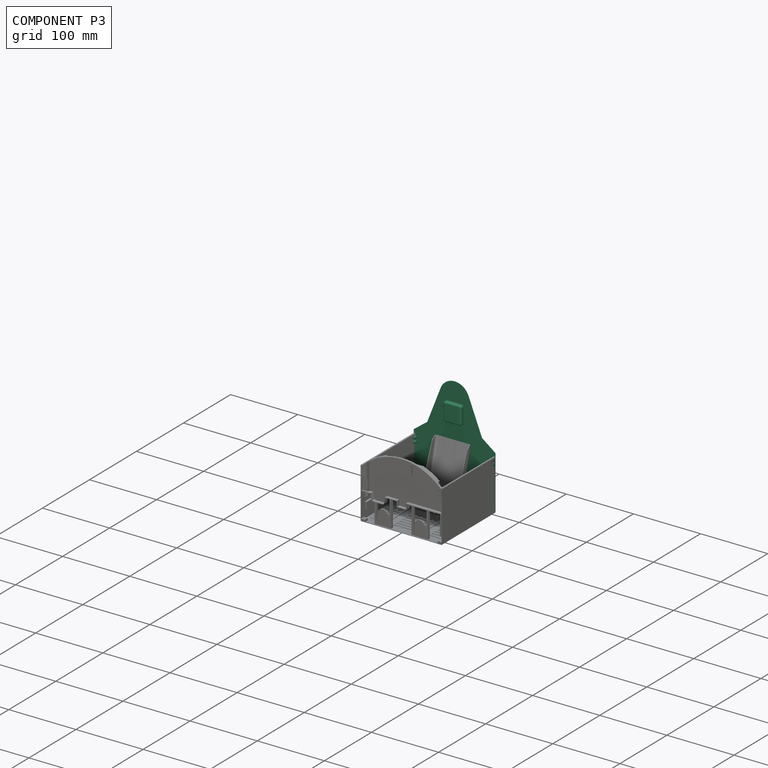
[diagram: component P3 — assembled]
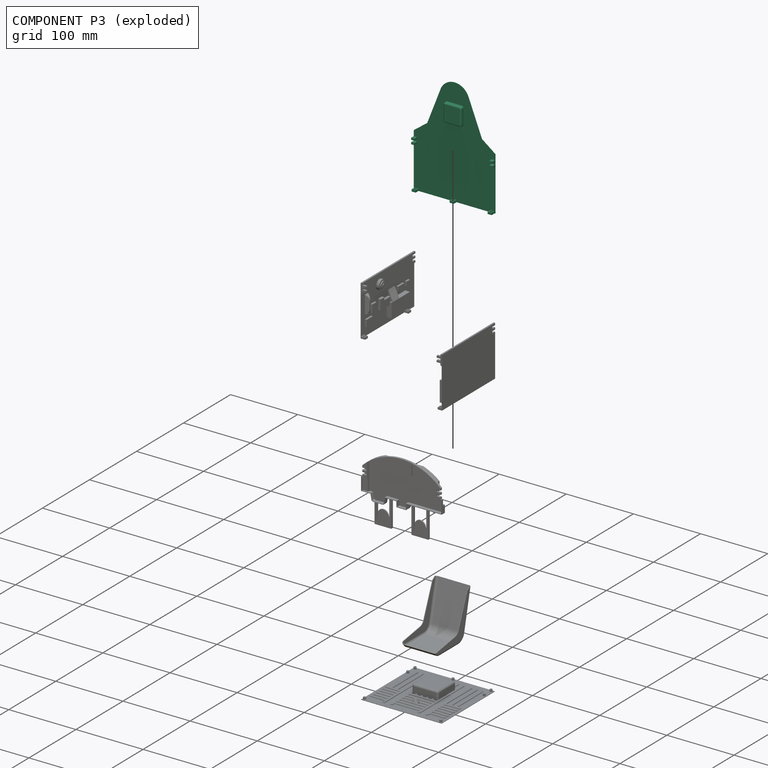
[diagram: component P3 — exploded]
COMPONENT P3 — recipe-attached (CADFS 00360888, mesh-verified: the recipe's output STEP matches this component's geometry to below the mesh-comparison resolution (tessellation chordal tolerance ~0.302 mm)).
Held by: FASTENED mate "緊固 1" to P5.
Construction recipe (FeatureScript — the CAD program that rebuilds this solid; sketch coordinates are in the units given by the * unit suffixes, e.g. mm):

FeatureScript 1511;
import(path : "onshape/std/geometry.fs", version : "1511.0");
import(path : "onshape/std/common.fs", version : "1511.0");
const mm = millimeter;
const VERTEX = EntityType.VERTEX;
const EDGE = EntityType.EDGE;
const FACE = EntityType.FACE;
const BODY = EntityType.BODY;
function v(x, y){return vector(x, y);}
function OD(order){return orderDisambiguation(order);}
function OSD(set){return originalSetDisambiguation(set);}
function TD(topology){return topologyDisambiguation(topology);}
function TDD(query){return trueDependencyDisambiguation(query);}
function sQuery(a, b, c) {return sketchEntityQuery(a, b, c);}

annotation { "Feature Type Name" : "Feature", "Feature Type Description" : "" }
export const myFeature = defineFeature(function(context is Context, id is Id, definition is map)
    precondition{}
    {
        {
            var Q0;
            Q0=qCreatedBy(makeId("Top.planeOp"),FACE);
            var sketch = newSketch(context, id + "F0", { "sketchPlane" : qUnion([Q0])});
            skLineSegment(sketch, "E0", {"start": v(-60.6, 80) * mm, "end": v(-60.6, 0) * mm});
            skLineSegment(sketch, "E1", {"start": v(-60.6, 0) * mm, "end": v(60.6, 0) * mm});
            skLineSegment(sketch, "E2", {"start": v(60.6, 0) * mm, "end": v(60.6, 80) * mm});
            skLineSegment(sketch, "E3", {"start": v(60.6, 80) * mm, "end": v(40.6, 95) * mm});
            skLineSegment(sketch, "E4", {"start": v(40.6, 95) * mm, "end": v(20.6, 146.23) * mm});
            skLineSegment(sketch, "E5", {"start": v(-60.6, 80) * mm, "end": v(-40.6, 95) * mm});
            skLineSegment(sketch, "E6", {"start": v(-40.6, 95) * mm, "end": v(-20.6, 146.23) * mm});
            skArc(sketch, "E7", {"start": v(-20.6, 146.23) * mm, "mid": v(0, 160.3) * mm, "end": v(20.6, 146.23) * mm});
            skPoint(sketch, "E8", {"position": v(0, 0) * mm});
            skLineSegment(sketch, "E9.bottom", {"start": v(-13.5, 132) * mm, "end": v(13.5, 132) * mm});
            skLineSegment(sketch, "E9.top", {"start": v(-13.5, 105) * mm, "end": v(13.5, 105) * mm});
            skLineSegment(sketch, "E9.left", {"start": v(-13.5, 132) * mm, "end": v(-13.5, 105) * mm});
            skLineSegment(sketch, "E9.right", {"start": v(13.5, 132) * mm, "end": v(13.5, 105) * mm});
            skPoint(sketch, "E10", {"position": v(0, 105) * mm});
            skSolve(sketch);
        }
        {
            var Q0;
            Q0 = qSketchRegion(id + "F0", true);
            var Q1;
            Q1=makeQuery(id+"F0.imprint","IMPRINT",FACE,{"disambiguationData":[TD([[makeQuery(id+"F0.imprint","IMPRINT",EDGE,{"derivedFrom":sQuery(id+"F0.wireOp",EDGE,"E9.bottom")}),-1.0]])]});
            extrude(context, id + "F1", {"entities" : qUnion([Q0, Q1]), "depth" : 0.6 * mm});
        }
        {
            var Q0;
            Q0=makeQuery(id+"F0.imprint","IMPRINT",FACE,{"disambiguationData":[TD([[makeQuery(id+"F0.imprint","IMPRINT",EDGE,{"derivedFrom":sQuery(id+"F0.wireOp",EDGE,"E9.bottom")}),-1.0]])]});
            extrude(context, id + "F2", {"entities" : qUnion([Q0]), "operationType" : NewBodyOperationType.ADD, "depth" : 6 * mm});
        }
        {
            var Q0;
            Q0=makeQuery(id+"F2.opExtrude","CAP_FACE",FACE,{"disambiguationData":[OSD([sQuery(id+"F0.wireOp",EDGE,"E9.bottom"),sQuery(id+"F0.wireOp",EDGE,"E9.top"),sQuery(id+"F0.wireOp",EDGE,"E9.left"),sQuery(id+"F0.wireOp",EDGE,"E9.right")])],"isStart":false});
            fillet(context, id + "F3", {"entities" : qUnion([Q0]), "radius" : 2 * mm, "tangentPropagation" : true, "allowEdgeOverflow" : false});
        }
        {
            var Q0;
            Q0=makeQuery(id+"F2.opExtrude","SWEPT_EDGE",EDGE,{"disambiguationData":[OSD([sQuery(id+"F0.wireOp",EDGE,"E9.bottom"),sQuery(id+"F0.wireOp",EDGE,"E9.left")])]});
            var Q1;
            Q1=makeQuery(id+"F2.opExtrude","SWEPT_EDGE",EDGE,{"disambiguationData":[OSD([sQuery(id+"F0.wireOp",EDGE,"E9.top"),sQuery(id+"F0.wireOp",EDGE,"E9.left")])]});
            var Q2;
            Q2=makeQuery(id+"F2.opExtrude","SWEPT_EDGE",EDGE,{"disambiguationData":[OSD([sQuery(id+"F0.wireOp",EDGE,"E9.top"),sQuery(id+"F0.wireOp",EDGE,"E9.right")])]});
            var Q3;
            Q3=makeQuery(id+"F2.opExtrude","SWEPT_EDGE",EDGE,{"disambiguationData":[OSD([sQuery(id+"F0.wireOp",EDGE,"E9.bottom"),sQuery(id+"F0.wireOp",EDGE,"E9.right")])]});
            fillet(context, id + "F4", {"entities" : qUnion([Q0, Q1, Q2, Q3]), "radius" : 3 * mm, "tangentPropagation" : true, "allowEdgeOverflow" : false});
        }
        {
            var Q0;
            Q0=makeQuery(id+"F1.opExtrude","CAP_FACE",FACE,{"disambiguationData":[OSD([sQuery(id+"F0.wireOp",EDGE,"E0"),sQuery(id+"F0.wireOp",EDGE,"E1"),sQuery(id+"F0.wireOp",EDGE,"E2"),sQuery(id+"F0.wireOp",EDGE,"E3"),sQuery(id+"F0.wireOp",EDGE,"E4"),sQuery(id+"F0.wireOp",EDGE,"E5"),sQuery(id+"F0.wireOp",EDGE,"E6"),sQuery(id+"F0.wireOp",EDGE,"E7")])],"isStart":false});
            var sketch = newSketch(context, id + "F5", { "sketchPlane" : qUnion([Q0])});
            skLineSegment(sketch, "E11.bottom", {"start": v(-60.6, 71.9) * mm, "end": v(-55.6, 71.9) * mm});
            skLineSegment(sketch, "E11.top", {"start": v(-60.6, 69.1) * mm, "end": v(-55.6, 69.1) * mm});
            skLineSegment(sketch, "E11.left", {"start": v(-60.6, 71.9) * mm, "end": v(-60.6, 69.1) * mm});
            skLineSegment(sketch, "E11.right", {"start": v(-55.6, 71.9) * mm, "end": v(-55.6, 69.1) * mm});
            skLineSegment(sketch, "E12.bottom", {"start": v(-60.6, 65.9) * mm, "end": v(-55.6, 65.9) * mm});
            skLineSegment(sketch, "E12.top", {"start": v(-60.6, 63.1) * mm, "end": v(-55.6, 63.1) * mm});
            skLineSegment(sketch, "E12.left", {"start": v(-60.6, 65.9) * mm, "end": v(-60.6, 63.1) * mm});
            skLineSegment(sketch, "E12.right", {"start": v(-55.6, 65.9) * mm, "end": v(-55.6, 63.1) * mm});
            skLineSegment(sketch, "E13.bottom", {"start": v(55.6, 71.9) * mm, "end": v(60.6, 71.9) * mm});
            skLineSegment(sketch, "E13.top", {"start": v(55.6, 69.1) * mm, "end": v(60.6, 69.1) * mm});
            skLineSegment(sketch, "E13.left", {"start": v(55.6, 71.9) * mm, "end": v(55.6, 69.1) * mm});
            skLineSegment(sketch, "E13.right", {"start": v(60.6, 71.9) * mm, "end": v(60.6, 69.1) * mm});
            skLineSegment(sketch, "E14.bottom", {"start": v(55.6, 65.9) * mm, "end": v(60.6, 65.9) * mm});
            skLineSegment(sketch, "E14.top", {"start": v(55.6, 63.1) * mm, "end": v(60.6, 63.1) * mm});
            skLineSegment(sketch, "E14.left", {"start": v(55.6, 65.9) * mm, "end": v(55.6, 63.1) * mm});
            skLineSegment(sketch, "E14.right", {"start": v(60.6, 65.9) * mm, "end": v(60.6, 63.1) * mm});
            skSolve(sketch);
        }
        {
            var Q0;
            Q0 = qSketchRegion(id + "F5", true);
            extrude(context, id + "F6", {"entities" : qUnion([Q0]), "operationType" : NewBodyOperationType.ADD, "depth" : 5.6 * mm});
        }
        {
            var Q0;
            Q0=makeQuery(id+"F1.opExtrude","CAP_FACE",FACE,{"disambiguationData":[OSD([sQuery(id+"F0.wireOp",EDGE,"E0"),sQuery(id+"F0.wireOp",EDGE,"E1"),sQuery(id+"F0.wireOp",EDGE,"E2"),sQuery(id+"F0.wireOp",EDGE,"E3"),sQuery(id+"F0.wireOp",EDGE,"E4"),sQuery(id+"F0.wireOp",EDGE,"E5"),sQuery(id+"F0.wireOp",EDGE,"E6"),sQuery(id+"F0.wireOp",EDGE,"E7")])],"isStart":false});
            var sketch = newSketch(context, id + "F7", { "sketchPlane" : qUnion([Q0])});
            skLineSegment(sketch, "E15.bottom", {"start": v(-59.6, 0) * mm, "end": v(-53.6, 0) * mm});
            skLineSegment(sketch, "E15.top", {"start": v(-59.6, 3) * mm, "end": v(-53.6, 3) * mm});
            skLineSegment(sketch, "E15.left", {"start": v(-59.6, 0) * mm, "end": v(-59.6, 3) * mm});
            skLineSegment(sketch, "E15.right", {"start": v(-53.6, 0) * mm, "end": v(-53.6, 3) * mm});
            skLineSegment(sketch, "E16.bottom", {"start": v(59.6, 0) * mm, "end": v(53.6, 0) * mm});
            skLineSegment(sketch, "E16.top", {"start": v(59.6, 3) * mm, "end": v(53.6, 3) * mm});
            skLineSegment(sketch, "E16.left", {"start": v(59.6, 0) * mm, "end": v(59.6, 3) * mm});
            skLineSegment(sketch, "E16.right", {"start": v(53.6, 0) * mm, "end": v(53.6, 3) * mm});
            skLineSegment(sketch, "E17.bottom", {"start": v(-3, 3) * mm, "end": v(3, 3) * mm});
            skLineSegment(sketch, "E17.top", {"start": v(-3, 0) * mm, "end": v(3, 0) * mm});
            skLineSegment(sketch, "E17.left", {"start": v(-3, 3) * mm, "end": v(-3, 0) * mm});
            skLineSegment(sketch, "E17.right", {"start": v(3, 3) * mm, "end": v(3, 0) * mm});
            skPoint(sketch, "E18", {"position": v(0, 3) * mm});
            skSolve(sketch);
        }
        {
            var Q0;
            Q0 = qSketchRegion(id + "F7", true);
            extrude(context, id + "F8", {"entities" : qUnion([Q0]), "operationType" : NewBodyOperationType.ADD, "depth" : 6 * mm});
        }
        {
            var Q0;
            Q0=makeQuery(id+"F8.boolean.opBoolean","MERGE",FACE,{"derivedFrom":[makeQuery(id+"F1.opExtrude","SWEPT_FACE",FACE,{"disambiguationData":[OSD([sQuery(id+"F0.wireOp",EDGE,"E1")])]}),makeQuery(id+"F8.opExtrude","SWEPT_FACE",FACE,{"disambiguationData":[OSD([sQuery(id+"F7.wireOp",EDGE,"E15.bottom")])]}),makeQuery(id+"F8.opExtrude","SWEPT_FACE",FACE,{"disambiguationData":[OSD([sQuery(id+"F7.wireOp",EDGE,"E16.bottom")])]})]});
            var sketch = newSketch(context, id + "F9", { "sketchPlane" : qUnion([Q0])});
            skCircle(sketch, "E19", {"center": v(56.6, 3.6) * mm, "radius": 2 * mm});
            skCircle(sketch, "E20", {"center": v(-56.6, 3.6) * mm, "radius": 2 * mm});
            skCircle(sketch, "E21", {"center": v(0, 3.6) * mm, "radius": 2 * mm});
            skSolve(sketch);
        }
        {
            var Q0;
            Q0 = qSketchRegion(id + "F9", true);
            extrude(context, id + "F10", {"entities" : qUnion([Q0]), "operationType" : NewBodyOperationType.REMOVE, "oppositeDirection" : true, "depth" : 4 * mm});
        }
    });
PROVENANCE & LICENSES
Assembly (occurrences, transforms, mates, per-part STEP geometry): AutoMate dataset, Zenodo record 7776208, CC0.
Construction recipes: CADFS (HuggingFace VladPyatov/CADFS, CC-BY-4.0, layered over the ABC dataset), FeatureScript reconstruction programs keyed by ABC model id.
Join: ABC meta listings map ABC model id -> Onshape documentId; within a shared document, parts are matched by geometric signature (bounding-box dims + volume at 0.1% relative tolerance, exact B-rep face/solid counts).
Verification: 4 of this assembly's 6 components carry a recipe attachment, and every attachment is mesh-verified: the CADFS STEP and the AutoMate member STEP were compared as meshes in their shared local frame (symmetric sampled-point-to-mesh distance); worst across the 4 attachments: below the mesh-comparison resolution (tessellation chordal tolerance ~0.302 mm) on a 201 mm part.
Renders: orthographic iso camera (az 35 / el 25); the floor grid conveys scale (grid pitch printed in each image; no ruler). In the exploded view each component is displaced by its stored offset vector: the offsets alone carry the explosion direction (mate normal/axis signs are not orientation cues and do not encode it), and separation distances are assigned per mate-chain, not proportionally to assembly-order depth.
